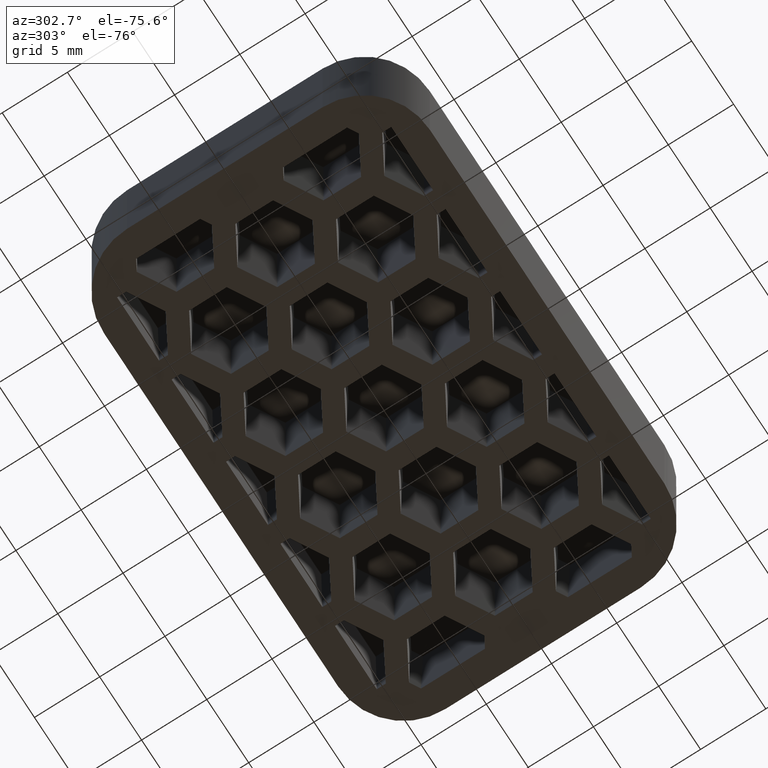
[diagram: clean part render]
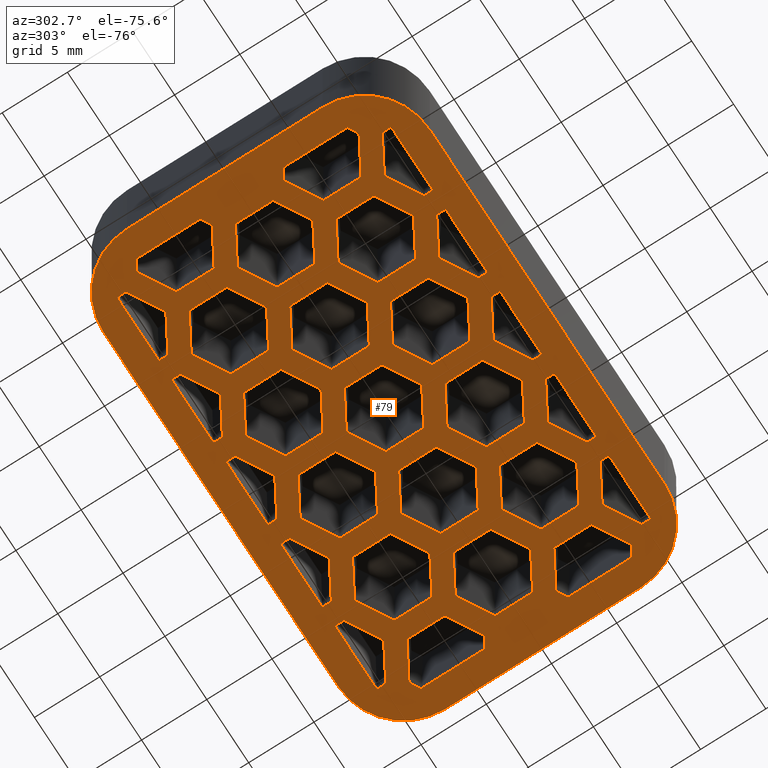
[diagram: same view with one face highlighted and labeled with its STEP entity id]
A machine part, auxiliary view. The second image highlights one B-rep face of the part: STEP entity #79.
In plain terms, the highlighted planar face has unit normal (0, -0, -1).
Its self-contained STEP definition (entity closure, byte-faithful):
#79 = ADVANCED_FACE( '', ( #317, #318, #319, #320, #321, #322, #323, #324, #325, #326, #327, #328, #329, #330, #331, #332, #333, #334, #335, #336, #337, #338, #339, #340, #341, #342, #343, #344 ), #345, .T. );
#317 = FACE_OUTER_BOUND( '', #805, .T. );
#318 = FACE_BOUND( '', #806, .T. );
#319 = FACE_BOUND( '', #807, .T. );
#320 = FACE_BOUND( '', #808, .T. );
#321 = FACE_BOUND( '', #809, .T. );
#322 = FACE_BOUND( '', #810, .T. );
#323 = FACE_BOUND( '', #811, .T. );
#324 = FACE_BOUND( '', #812, .T. );
#325 = FACE_BOUND( '', #813, .T. );
#326 = FACE_BOUND( '', #814, .T. );
#327 = FACE_BOUND( '', #815, .T. );
#328 = FACE_BOUND( '', #816, .T. );
#329 = FACE_BOUND( '', #817, .T. );
#330 = FACE_BOUND( '', #818, .T. );
#331 = FACE_BOUND( '', #819, .T. );
#332 = FACE_BOUND( '', #820, .T. );
#333 = FACE_BOUND( '', #821, .T. );
#334 = FACE_BOUND( '', #822, .T. );
#335 = FACE_BOUND( '', #823, .T. );
#336 = FACE_BOUND( '', #824, .T. );
#337 = FACE_BOUND( '', #825, .T. );
#338 = FACE_BOUND( '', #826, .T. );
#339 = FACE_BOUND( '', #827, .T. );
#340 = FACE_BOUND( '', #828, .T. );
#341 = FACE_BOUND( '', #829, .T. );
#342 = FACE_BOUND( '', #830, .T. );
#343 = FACE_BOUND( '', #831, .T. );
#344 = FACE_BOUND( '', #832, .T. );
#345 = PLANE( '', #833 );
#805 = EDGE_LOOP( '', ( #1340, #1341, #1342, #1343, #1344, #1345, #1346, #1347 ) );
#806 = EDGE_LOOP( '', ( #1348, #1349, #1350, #1351, #1352, #1353 ) );
#807 = EDGE_LOOP( '', ( #1354, #1355, #1356, #1357, #1358, #1359 ) );
#808 = EDGE_LOOP( '', ( #1360, #1361, #1362, #1363, #1364, #1365 ) );
#809 = EDGE_LOOP( '', ( #1366, #1367, #1368, #1369, #1370, #1371 ) );
#810 = EDGE_LOOP( '', ( #1372, #1373, #1374, #1375, #1376, #1377 ) );
#811 = EDGE_LOOP( '', ( #1378, #1379, #1380, #1381, #1382, #1383 ) );
#812 = EDGE_LOOP( '', ( #1384, #1385, #1386, #1387, #1388, #1389 ) );
#813 = EDGE_LOOP( '', ( #1390, #1391, #1392, #1393, #1394, #1395 ) );
#814 = EDGE_LOOP( '', ( #1396, #1397, #1398, #1399, #1400, #1401 ) );
#815 = EDGE_LOOP( '', ( #1402, #1403, #1404, #1405, #1406, #1407 ) );
#816 = EDGE_LOOP( '', ( #1408, #1409, #1410, #1411, #1412, #1413 ) );
#817 = EDGE_LOOP( '', ( #1414, #1415, #1416, #1417, #1418, #1419 ) );
#818 = EDGE_LOOP( '', ( #1420, #1421, #1422, #1423, #1424, #1425 ) );
#819 = EDGE_LOOP( '', ( #1426, #1427, #1428, #1429, #1430 ) );
#820 = EDGE_LOOP( '', ( #1431, #1432, #1433, #1434, #1435 ) );
#821 = EDGE_LOOP( '', ( #1436, #1437, #1438, #1439, #1440 ) );
#822 = EDGE_LOOP( '', ( #1441, #1442, #1443, #1444, #1445 ) );
#823 = EDGE_LOOP( '', ( #1446, #1447, #1448, #1449, #1450 ) );
#824 = EDGE_LOOP( '', ( #1451, #1452, #1453, #1454, #1455, #1456 ) );
#825 = EDGE_LOOP( '', ( #1457, #1458, #1459, #1460, #1461, #1462 ) );
#826 = EDGE_LOOP( '', ( #1463, #1464, #1465, #1466, #1467 ) );
#827 = EDGE_LOOP( '', ( #1468, #1469, #1470, #1471, #1472 ) );
#828 = EDGE_LOOP( '', ( #1473, #1474, #1475, #1476, #1477 ) );
#829 = EDGE_LOOP( '', ( #1478, #1479, #1480, #1481, #1482 ) );
#830 = EDGE_LOOP( '', ( #1483, #1484, #1485, #1486, #1487 ) );
#831 = EDGE_LOOP( '', ( #1488, #1489, #1490, #1491, #1492, #1493 ) );
#832 = EDGE_LOOP( '', ( #1494, #1495, #1496, #1497, #1498, #1499 ) );
#833 = AXIS2_PLACEMENT_3D( '', #1500, #1501, #1502 );
#1340 = ORIENTED_EDGE( '', *, *, #3138, .T. );
#1341 = ORIENTED_EDGE( '', *, *, #3139, .T. );
#1342 = ORIENTED_EDGE( '', *, *, #3140, .T. );
#1343 = ORIENTED_EDGE( '', *, *, #3132, .T. );
#1344 = ORIENTED_EDGE( '', *, *, #3141, .T. );
#1345 = ORIENTED_EDGE( '', *, *, #3142, .T. );
#1346 = ORIENTED_EDGE( '', *, *, #3143, .T. );
#1347 = ORIENTED_EDGE( '', *, *, #3144, .T. );
#1348 = ORIENTED_EDGE( '', *, *, #3145, .T. );
#1349 = ORIENTED_EDGE( '', *, *, #3146, .T. );
#1350 = ORIENTED_EDGE( '', *, *, #3147, .T. );
#1351 = ORIENTED_EDGE( '', *, *, #3148, .T. );
#1352 = ORIENTED_EDGE( '', *, *, #3149, .T. );
#1353 = ORIENTED_EDGE( '', *, *, #3150, .T. );
#1354 = ORIENTED_EDGE( '', *, *, #3151, .T. );
#1355 = ORIENTED_EDGE( '', *, *, #3152, .T. );
#1356 = ORIENTED_EDGE( '', *, *, #3153, .T. );
#1357 = ORIENTED_EDGE( '', *, *, #3154, .T. );
#1358 = ORIENTED_EDGE( '', *, *, #3155, .T. );
#1359 = ORIENTED_EDGE( '', *, *, #3156, .T. );
#1360 = ORIENTED_EDGE( '', *, *, #3157, .F. );
#1361 = ORIENTED_EDGE( '', *, *, #3158, .F. );
#1362 = ORIENTED_EDGE( '', *, *, #3159, .F. );
#1363 = ORIENTED_EDGE( '', *, *, #3160, .F. );
#1364 = ORIENTED_EDGE( '', *, *, #3161, .F. );
#1365 = ORIENTED_EDGE( '', *, *, #3162, .F. );
#1366 = ORIENTED_EDGE( '', *, *, #3163, .F. );
#1367 = ORIENTED_EDGE( '', *, *, #3164, .F. );
#1368 = ORIENTED_EDGE( '', *, *, #3165, .F. );
#1369 = ORIENTED_EDGE( '', *, *, #3166, .F. );
#1370 = ORIENTED_EDGE( '', *, *, #3167, .F. );
#1371 = ORIENTED_EDGE( '', *, *, #3168, .F. );
#1372 = ORIENTED_EDGE( '', *, *, #3169, .F. );
#1373 = ORIENTED_EDGE( '', *, *, #3170, .F. );
#1374 = ORIENTED_EDGE( '', *, *, #3171, .F. );
#1375 = ORIENTED_EDGE( '', *, *, #3172, .F. );
#1376 = ORIENTED_EDGE( '', *, *, #3173, .F. );
#1377 = ORIENTED_EDGE( '', *, *, #3174, .F. );
#1378 = ORIENTED_EDGE( '', *, *, #3175, .F. );
#1379 = ORIENTED_EDGE( '', *, *, #3176, .F. );
#1380 = ORIENTED_EDGE( '', *, *, #3177, .F. );
#1381 = ORIENTED_EDGE( '', *, *, #3178, .F. );
#1382 = ORIENTED_EDGE( '', *, *, #3179, .F. );
#1383 = ORIENTED_EDGE( '', *, *, #3180, .F. );
#1384 = ORIENTED_EDGE( '', *, *, #3181, .F. );
#1385 = ORIENTED_EDGE( '', *, *, #3182, .F. );
#1386 = ORIENTED_EDGE( '', *, *, #3183, .F. );
#1387 = ORIENTED_EDGE( '', *, *, #3184, .F. );
#1388 = ORIENTED_EDGE( '', *, *, #3185, .F. );
#1389 = ORIENTED_EDGE( '', *, *, #3186, .F. );
#1390 = ORIENTED_EDGE( '', *, *, #3187, .F. );
#1391 = ORIENTED_EDGE( '', *, *, #3188, .F. );
#1392 = ORIENTED_EDGE( '', *, *, #3189, .F. );
#1393 = ORIENTED_EDGE( '', *, *, #3190, .F. );
#1394 = ORIENTED_EDGE( '', *, *, #3191, .F. );
#1395 = ORIENTED_EDGE( '', *, *, #3192, .F. );
#1396 = ORIENTED_EDGE( '', *, *, #3193, .F. );
#1397 = ORIENTED_EDGE( '', *, *, #3194, .F. );
#1398 = ORIENTED_EDGE( '', *, *, #3195, .F. );
#1399 = ORIENTED_EDGE( '', *, *, #3196, .F. );
#1400 = ORIENTED_EDGE( '', *, *, #3197, .F. );
#1401 = ORIENTED_EDGE( '', *, *, #3198, .F. );
#1402 = ORIENTED_EDGE( '', *, *, #3199, .F. );
#1403 = ORIENTED_EDGE( '', *, *, #3200, .F. );
#1404 = ORIENTED_EDGE( '', *, *, #3201, .F. );
#1405 = ORIENTED_EDGE( '', *, *, #3202, .F. );
#1406 = ORIENTED_EDGE( '', *, *, #3203, .F. );
#1407 = ORIENTED_EDGE( '', *, *, #3204, .F. );
#1408 = ORIENTED_EDGE( '', *, *, #3205, .F. );
#1409 = ORIENTED_EDGE( '', *, *, #3206, .F. );
#1410 = ORIENTED_EDGE( '', *, *, #3207, .F. );
#1411 = ORIENTED_EDGE( '', *, *, #3208, .F. );
#1412 = ORIENTED_EDGE( '', *, *, #3209, .F. );
#1413 = ORIENTED_EDGE( '', *, *, #3210, .F. );
#1414 = ORIENTED_EDGE( '', *, *, #3211, .T. );
#1415 = ORIENTED_EDGE( '', *, *, #3212, .T. );
#1416 = ORIENTED_EDGE( '', *, *, #3213, .T. );
#1417 = ORIENTED_EDGE( '', *, *, #3214, .T. );
#1418 = ORIENTED_EDGE( '', *, *, #3215, .T. );
#1419 = ORIENTED_EDGE( '', *, *, #3216, .T. );
#1420 = ORIENTED_EDGE( '', *, *, #3217, .T. );
#1421 = ORIENTED_EDGE( '', *, *, #3218, .T. );
#1422 = ORIENTED_EDGE( '', *, *, #3219, .T. );
#1423 = ORIENTED_EDGE( '', *, *, #3220, .T. );
#1424 = ORIENTED_EDGE( '', *, *, #3221, .T. );
#1425 = ORIENTED_EDGE( '', *, *, #3222, .T. );
#1426 = ORIENTED_EDGE( '', *, *, #3223, .T. );
#1427 = ORIENTED_EDGE( '', *, *, #3224, .F. );
#1428 = ORIENTED_EDGE( '', *, *, #3225, .F. );
#1429 = ORIENTED_EDGE( '', *, *, #3226, .F. );
#1430 = ORIENTED_EDGE( '', *, *, #3227, .F. );
#1431 = ORIENTED_EDGE( '', *, *, #3228, .T. );
#1432 = ORIENTED_EDGE( '', *, *, #3229, .F. );
#1433 = ORIENTED_EDGE( '', *, *, #3230, .F. );
#1434 = ORIENTED_EDGE( '', *, *, #3231, .F. );
#1435 = ORIENTED_EDGE( '', *, *, #3232, .F. );
#1436 = ORIENTED_EDGE( '', *, *, #3233, .T. );
#1437 = ORIENTED_EDGE( '', *, *, #3234, .F. );
#1438 = ORIENTED_EDGE( '', *, *, #3235, .F. );
#1439 = ORIENTED_EDGE( '', *, *, #3236, .F. );
#1440 = ORIENTED_EDGE( '', *, *, #3237, .F. );
#1441 = ORIENTED_EDGE( '', *, *, #3238, .T. );
#1442 = ORIENTED_EDGE( '', *, *, #3239, .F. );
#1443 = ORIENTED_EDGE( '', *, *, #3240, .F. );
#1444 = ORIENTED_EDGE( '', *, *, #3241, .F. );
#1445 = ORIENTED_EDGE( '', *, *, #3242, .F. );
#1446 = ORIENTED_EDGE( '', *, *, #3243, .T. );
#1447 = ORIENTED_EDGE( '', *, *, #3244, .F. );
#1448 = ORIENTED_EDGE( '', *, *, #3245, .F. );
#1449 = ORIENTED_EDGE( '', *, *, #3246, .F. );
#1450 = ORIENTED_EDGE( '', *, *, #3247, .F. );
#1451 = ORIENTED_EDGE( '', *, *, #3248, .T. );
#1452 = ORIENTED_EDGE( '', *, *, #3249, .T. );
#1453 = ORIENTED_EDGE( '', *, *, #3250, .T. );
#1454 = ORIENTED_EDGE( '', *, *, #3251, .T. );
#1455 = ORIENTED_EDGE( '', *, *, #3252, .T. );
#1456 = ORIENTED_EDGE( '', *, *, #3253, .T. );
#1457 = ORIENTED_EDGE( '', *, *, #3254, .T. );
#1458 = ORIENTED_EDGE( '', *, *, #3255, .F. );
#1459 = ORIENTED_EDGE( '', *, *, #3256, .F. );
#1460 = ORIENTED_EDGE( '', *, *, #3257, .F. );
#1461 = ORIENTED_EDGE( '', *, *, #3258, .F. );
#1462 = ORIENTED_EDGE( '', *, *, #3259, .F. );
#1463 = ORIENTED_EDGE( '', *, *, #3260, .F. );
#1464 = ORIENTED_EDGE( '', *, *, #3261, .T. );
#1465 = ORIENTED_EDGE( '', *, *, #3262, .F. );
#1466 = ORIENTED_EDGE( '', *, *, #3263, .F. );
#1467 = ORIENTED_EDGE( '', *, *, #3264, .F. );
#1468 = ORIENTED_EDGE( '', *, *, #3265, .T. );
#1469 = ORIENTED_EDGE( '', *, *, #3266, .F. );
#1470 = ORIENTED_EDGE( '', *, *, #3267, .F. );
#1471 = ORIENTED_EDGE( '', *, *, #3268, .F. );
#1472 = ORIENTED_EDGE( '', *, *, #3269, .F. );
#1473 = ORIENTED_EDGE( '', *, *, #3270, .T. );
#1474 = ORIENTED_EDGE( '', *, *, #3271, .F. );
#1475 = ORIENTED_EDGE( '', *, *, #3272, .F. );
#1476 = ORIENTED_EDGE( '', *, *, #3273, .F. );
#1477 = ORIENTED_EDGE( '', *, *, #3274, .F. );
#1478 = ORIENTED_EDGE( '', *, *, #3275, .T. );
#1479 = ORIENTED_EDGE( '', *, *, #3276, .F. );
#1480 = ORIENTED_EDGE( '', *, *, #3277, .F. );
#1481 = ORIENTED_EDGE( '', *, *, #3278, .F. );
#1482 = ORIENTED_EDGE( '', *, *, #3279, .F. );
#1483 = ORIENTED_EDGE( '', *, *, #3280, .T. );
#1484 = ORIENTED_EDGE( '', *, *, #3281, .F. );
#1485 = ORIENTED_EDGE( '', *, *, #3282, .F. );
#1486 = ORIENTED_EDGE( '', *, *, #3283, .F. );
#1487 = ORIENTED_EDGE( '', *, *, #3284, .F. );
#1488 = ORIENTED_EDGE( '', *, *, #3285, .F. );
#1489 = ORIENTED_EDGE( '', *, *, #3286, .T. );
#1490 = ORIENTED_EDGE( '', *, *, #3287, .F. );
#1491 = ORIENTED_EDGE( '', *, *, #3288, .F. );
#1492 = ORIENTED_EDGE( '', *, *, #3289, .F. );
#1493 = ORIENTED_EDGE( '', *, *, #3290, .F. );
#1494 = ORIENTED_EDGE( '', *, *, #3291, .T. );
#1495 = ORIENTED_EDGE( '', *, *, #3292, .T. );
#1496 = ORIENTED_EDGE( '', *, *, #3293, .T. );
#1497 = ORIENTED_EDGE( '', *, *, #3294, .T. );
#1498 = ORIENTED_EDGE( '', *, *, #3295, .T. );
#1499 = ORIENTED_EDGE( '', *, *, #3296, .T. );
#1500 = CARTESIAN_POINT( '', ( 30.5000000000000, -4.24870678161208E-031, -6.93889390390723E-015 ) );
#1501 = DIRECTION( '', ( 0.000000000000000, -6.12303176911189E-017, -1.00000000000000 ) );
#1502 = DIRECTION( '', ( 1.00000000000000, 6.12303176911189E-017, -3.74915180455534E-033 ) );
#3132 = EDGE_CURVE( '', #3736, #3738, #3740, .T. );
#3138 = EDGE_CURVE( '', #3749, #3750, #3751, .T. );
#3139 = EDGE_CURVE( '', #3750, #3752, #3753, .T. );
#3140 = EDGE_CURVE( '', #3752, #3736, #3754, .T. );
#3141 = EDGE_CURVE( '', #3738, #3755, #3756, .T. );
#3142 = EDGE_CURVE( '', #3755, #3757, #3758, .T. );
#3143 = EDGE_CURVE( '', #3757, #3759, #3760, .T. );
#3144 = EDGE_CURVE( '', #3759, #3749, #3761, .T. );
#3145 = EDGE_CURVE( '', #3762, #3763, #3764, .F. );
#3146 = EDGE_CURVE( '', #3763, #3765, #3766, .F. );
#3147 = EDGE_CURVE( '', #3765, #3767, #3768, .F. );
#3148 = EDGE_CURVE( '', #3767, #3769, #3770, .F. );
#3149 = EDGE_CURVE( '', #3769, #3771, #3772, .F. );
#3150 = EDGE_CURVE( '', #3771, #3762, #3773, .F. );
#3151 = EDGE_CURVE( '', #3774, #3775, #3776, .F. );
#3152 = EDGE_CURVE( '', #3775, #3777, #3778, .F. );
#3153 = EDGE_CURVE( '', #3777, #3779, #3780, .F. );
#3154 = EDGE_CURVE( '', #3779, #3781, #3782, .F. );
#3155 = EDGE_CURVE( '', #3781, #3783, #3784, .F. );
#3156 = EDGE_CURVE( '', #3783, #3774, #3785, .F. );
#3157 = EDGE_CURVE( '', #3786, #3787, #3788, .T. );
#3158 = EDGE_CURVE( '', #3789, #3786, #3790, .T. );
#3159 = EDGE_CURVE( '', #3791, #3789, #3792, .T. );
#3160 = EDGE_CURVE( '', #3793, #3791, #3794, .T. );
#3161 = EDGE_CURVE( '', #3795, #3793, #3796, .T. );
#3162 = EDGE_CURVE( '', #3787, #3795, #3797, .T. );
#3163 = EDGE_CURVE( '', #3798, #3799, #3800, .T. );
#3164 = EDGE_CURVE( '', #3801, #3798, #3802, .T. );
#3165 = EDGE_CURVE( '', #3803, #3801, #3804, .T. );
#3166 = EDGE_CURVE( '', #3805, #3803, #3806, .T. );
#3167 = EDGE_CURVE( '', #3807, #3805, #3808, .T. );
#3168 = EDGE_CURVE( '', #3799, #3807, #3809, .T. );
#3169 = EDGE_CURVE( '', #3810, #3811, #3812, .T. );
#3170 = EDGE_CURVE( '', #3813, #3810, #3814, .T. );
#3171 = EDGE_CURVE( '', #3815, #3813, #3816, .T. );
#3172 = EDGE_CURVE( '', #3817, #3815, #3818, .T. );
#3173 = EDGE_CURVE( '', #3819, #3817, #3820, .T. );
#3174 = EDGE_CURVE( '', #3811, #3819, #3821, .T. );
#3175 = EDGE_CURVE( '', #3822, #3823, #3824, .T. );
#3176 = EDGE_CURVE( '', #3825, #3822, #3826, .T. );
#3177 = EDGE_CURVE( '', #3827, #3825, #3828, .T. );
#3178 = EDGE_CURVE( '', #3829, #3827, #3830, .T. );
#3179 = EDGE_CURVE( '', #3831, #3829, #3832, .T. );
#3180 = EDGE_CURVE( '', #3823, #3831, #3833, .T. );
#3181 = EDGE_CURVE( '', #3834, #3835, #3836, .T. );
#3182 = EDGE_CURVE( '', #3837, #3834, #3838, .T. );
#3183 = EDGE_CURVE( '', #3839, #3837, #3840, .T. );
#3184 = EDGE_CURVE( '', #3841, #3839, #3842, .T. );
#3185 = EDGE_CURVE( '', #3843, #3841, #3844, .T. );
#3186 = EDGE_CURVE( '', #3835, #3843, #3845, .T. );
#3187 = EDGE_CURVE( '', #3846, #3847, #3848, .T. );
#3188 = EDGE_CURVE( '', #3849, #3846, #3850, .T. );
#3189 = EDGE_CURVE( '', #3851, #3849, #3852, .T. );
#3190 = EDGE_CURVE( '', #3853, #3851, #3854, .T. );
#3191 = EDGE_CURVE( '', #3855, #3853, #3856, .T. );
#3192 = EDGE_CURVE( '', #3847, #3855, #3857, .T. );
#3193 = EDGE_CURVE( '', #3858, #3859, #3860, .T. );
#3194 = EDGE_CURVE( '', #3861, #3858, #3862, .T. );
#3195 = EDGE_CURVE( '', #3863, #3861, #3864, .T. );
#3196 = EDGE_CURVE( '', #3865, #3863, #3866, .T. );
#3197 = EDGE_CURVE( '', #3867, #3865, #3868, .T. );
#3198 = EDGE_CURVE( '', #3859, #3867, #3869, .T. );
#3199 = EDGE_CURVE( '', #3870, #3871, #3872, .T. );
#3200 = EDGE_CURVE( '', #3873, #3870, #3874, .T. );
#3201 = EDGE_CURVE( '', #3875, #3873, #3876, .T. );
#3202 = EDGE_CURVE( '', #3877, #3875, #3878, .T. );
#3203 = EDGE_CURVE( '', #3879, #3877, #3880, .T. );
#3204 = EDGE_CURVE( '', #3871, #3879, #3881, .T. );
#3205 = EDGE_CURVE( '', #3882, #3883, #3884, .T. );
#3206 = EDGE_CURVE( '', #3885, #3882, #3886, .T. );
#3207 = EDGE_CURVE( '', #3887, #3885, #3888, .T. );
#3208 = EDGE_CURVE( '', #3889, #3887, #3890, .T. );
#3209 = EDGE_CURVE( '', #3891, #3889, #3892, .T. );
#3210 = EDGE_CURVE( '', #3883, #3891, #3893, .T. );
#3211 = EDGE_CURVE( '', #3894, #3895, #3896, .F. );
#3212 = EDGE_CURVE( '', #3895, #3897, #3898, .F. );
#3213 = EDGE_CURVE( '', #3897, #3899, #3900, .F. );
#3214 = EDGE_CURVE( '', #3899, #3901, #3902, .F. );
#3215 = EDGE_CURVE( '', #3901, #3903, #3904, .F. );
#3216 = EDGE_CURVE( '', #3903, #3894, #3905, .F. );
#3217 = EDGE_CURVE( '', #3906, #3907, #3908, .F. );
#3218 = EDGE_CURVE( '', #3907, #3909, #3910, .F. );
#3219 = EDGE_CURVE( '', #3909, #3911, #3912, .F. );
#3220 = EDGE_CURVE( '', #3911, #3913, #3914, .F. );
#3221 = EDGE_CURVE( '', #3913, #3915, #3916, .F. );
#3222 = EDGE_CURVE( '', #3915, #3906, #3917, .F. );
#3223 = EDGE_CURVE( '', #3918, #3919, #3920, .T. );
#3224 = EDGE_CURVE( '', #3921, #3919, #3922, .T. );
#3225 = EDGE_CURVE( '', #3923, #3921, #3924, .T. );
#3226 = EDGE_CURVE( '', #3925, #3923, #3926, .T. );
#3227 = EDGE_CURVE( '', #3918, #3925, #3927, .T. );
#3228 = EDGE_CURVE( '', #3928, #3929, #3930, .T. );
#3229 = EDGE_CURVE( '', #3931, #3929, #3932, .T. );
#3230 = EDGE_CURVE( '', #3933, #3931, #3934, .T. );
#3231 = EDGE_CURVE( '', #3935, #3933, #3936, .T. );
#3232 = EDGE_CURVE( '', #3928, #3935, #3937, .T. );
#3233 = EDGE_CURVE( '', #3938, #3939, #3940, .T. );
#3234 = EDGE_CURVE( '', #3941, #3939, #3942, .T. );
#3235 = EDGE_CURVE( '', #3943, #3941, #3944, .T. );
#3236 = EDGE_CURVE( '', #3945, #3943, #3946, .T. );
#3237 = EDGE_CURVE( '', #3938, #3945, #3947, .T. );
#3238 = EDGE_CURVE( '', #3948, #3949, #3950, .T. );
#3239 = EDGE_CURVE( '', #3951, #3949, #3952, .T. );
#3240 = EDGE_CURVE( '', #3953, #3951, #3954, .T. );
#3241 = EDGE_CURVE( '', #3955, #3953, #3956, .T. );
#3242 = EDGE_CURVE( '', #3948, #3955, #3957, .T. );
#3243 = EDGE_CURVE( '', #3958, #3959, #3960, .T. );
#3244 = EDGE_CURVE( '', #3961, #3959, #3962, .T. );
#3245 = EDGE_CURVE( '', #3963, #3961, #3964, .T. );
#3246 = EDGE_CURVE( '', #3965, #3963, #3966, .T. );
#3247 = EDGE_CURVE( '', #3958, #3965, #3967, .T. );
#3248 = EDGE_CURVE( '', #3968, #3969, #3970, .T. );
#3249 = EDGE_CURVE( '', #3969, #3971, #3972, .F. );
#3250 = EDGE_CURVE( '', #3971, #3973, #3974, .F. );
#3251 = EDGE_CURVE( '', #3973, #3975, #3976, .F. );
#3252 = EDGE_CURVE( '', #3975, #3977, #3978, .F. );
#3253 = EDGE_CURVE( '', #3977, #3968, #3979, .F. );
#3254 = EDGE_CURVE( '', #3980, #3981, #3982, .T. );
#3255 = EDGE_CURVE( '', #3983, #3981, #3984, .T. );
#3256 = EDGE_CURVE( '', #3985, #3983, #3986, .T. );
#3257 = EDGE_CURVE( '', #3987, #3985, #3988, .T. );
#3258 = EDGE_CURVE( '', #3989, #3987, #3990, .T. );
#3259 = EDGE_CURVE( '', #3980, #3989, #3991, .T. );
#3260 = EDGE_CURVE( '', #3992, #3993, #3994, .T. );
#3261 = EDGE_CURVE( '', #3992, #3995, #3996, .T. );
#3262 = EDGE_CURVE( '', #3997, #3995, #3998, .T. );
#3263 = EDGE_CURVE( '', #3999, #3997, #4000, .T. );
#3264 = EDGE_CURVE( '', #3993, #3999, #4001, .T. );
#3265 = EDGE_CURVE( '', #4002, #4003, #4004, .T. );
#3266 = EDGE_CURVE( '', #4005, #4003, #4006, .T. );
#3267 = EDGE_CURVE( '', #4007, #4005, #4008, .T. );
#3268 = EDGE_CURVE( '', #4009, #4007, #4010, .T. );
#3269 = EDGE_CURVE( '', #4002, #4009, #4011, .T. );
#3270 = EDGE_CURVE( '', #4012, #4013, #4014, .T. );
#3271 = EDGE_CURVE( '', #4015, #4013, #4016, .T. );
#3272 = EDGE_CURVE( '', #4017, #4015, #4018, .T. );
#3273 = EDGE_CURVE( '', #4019, #4017, #4020, .T. );
#3274 = EDGE_CURVE( '', #4012, #4019, #4021, .T. );
#3275 = EDGE_CURVE( '', #4022, #4023, #4024, .T. );
#3276 = EDGE_CURVE( '', #4025, #4023, #4026, .T. );
#3277 = EDGE_CURVE( '', #4027, #4025, #4028, .T. );
#3278 = EDGE_CURVE( '', #4029, #4027, #4030, .T. );
#3279 = EDGE_CURVE( '', #4022, #4029, #4031, .T. );
#3280 = EDGE_CURVE( '', #4032, #4033, #4034, .T. );
#3281 = EDGE_CURVE( '', #4035, #4033, #4036, .T. );
#3282 = EDGE_CURVE( '', #4037, #4035, #4038, .T. );
#3283 = EDGE_CURVE( '', #4039, #4037, #4040, .T. );
#3284 = EDGE_CURVE( '', #4032, #4039, #4041, .T. );
#3285 = EDGE_CURVE( '', #4042, #4043, #4044, .T. );
#3286 = EDGE_CURVE( '', #4042, #4045, #4046, .T. );
#3287 = EDGE_CURVE( '', #4047, #4045, #4048, .T. );
#3288 = EDGE_CURVE( '', #4049, #4047, #4050, .T. );
#3289 = EDGE_CURVE( '', #4051, #4049, #4052, .T. );
#3290 = EDGE_CURVE( '', #4043, #4051, #4053, .T. );
#3291 = EDGE_CURVE( '', #4054, #4055, #4056, .T. );
#3292 = EDGE_CURVE( '', #4055, #4057, #4058, .F. );
#3293 = EDGE_CURVE( '', #4057, #4059, #4060, .F. );
#3294 = EDGE_CURVE( '', #4059, #4061, #4062, .F. );
#3295 = EDGE_CURVE( '', #4061, #4063, #4064, .F. );
#3296 = EDGE_CURVE( '', #4063, #4054, #4065, .F. );
#3736 = VERTEX_POINT( '', #4714 );
#3738 = VERTEX_POINT( '', #4717 );
#3740 = LINE( '', #4720, #4721 );
#3749 = VERTEX_POINT( '', #4735 );
#3750 = VERTEX_POINT( '', #4736 );
#3751 = CIRCLE( '', #4737, 5.00000000000000 );
#3752 = VERTEX_POINT( '', #4738 );
#3753 = LINE( '', #4739, #4740 );
#3754 = CIRCLE( '', #4741, 4.99999999999998 );
#3755 = VERTEX_POINT( '', #4742 );
#3756 = CIRCLE( '', #4743, 5.00000000000000 );
#3757 = VERTEX_POINT( '', #4744 );
#3758 = LINE( '', #4745, #4746 );
#3759 = VERTEX_POINT( '', #4747 );
#3760 = CIRCLE( '', #4748, 5.00000000000000 );
#3761 = LINE( '', #4749, #4750 );
#3762 = VERTEX_POINT( '', #4751 );
#3763 = VERTEX_POINT( '', #4752 );
#3764 = LINE( '', #4753, #4754 );
#3765 = VERTEX_POINT( '', #4755 );
#3766 = LINE( '', #4756, #4757 );
#3767 = VERTEX_POINT( '', #4758 );
#3768 = LINE( '', #4759, #4760 );
#3769 = VERTEX_POINT( '', #4761 );
#3770 = LINE( '', #4762, #4763 );
#3771 = VERTEX_POINT( '', #4764 );
#3772 = LINE( '', #4765, #4766 );
#3773 = LINE( '', #4767, #4768 );
#3774 = VERTEX_POINT( '', #4769 );
#3775 = VERTEX_POINT( '', #4770 );
#3776 = LINE( '', #4771, #4772 );
#3777 = VERTEX_POINT( '', #4773 );
#3778 = LINE( '', #4774, #4775 );
#3779 = VERTEX_POINT( '', #4776 );
#3780 = LINE( '', #4777, #4778 );
#3781 = VERTEX_POINT( '', #4779 );
#3782 = LINE( '', #4780, #4781 );
#3783 = VERTEX_POINT( '', #4782 );
#3784 = LINE( '', #4783, #4784 );
#3785 = LINE( '', #4785, #4786 );
#3786 = VERTEX_POINT( '', #4787 );
#3787 = VERTEX_POINT( '', #4788 );
#3788 = LINE( '', #4789, #4790 );
#3789 = VERTEX_POINT( '', #4791 );
#3790 = LINE( '', #4792, #4793 );
#3791 = VERTEX_POINT( '', #4794 );
#3792 = LINE( '', #4795, #4796 );
#3793 = VERTEX_POINT( '', #4797 );
#3794 = LINE( '', #4798, #4799 );
#3795 = VERTEX_POINT( '', #4800 );
#3796 = LINE( '', #4801, #4802 );
#3797 = LINE( '', #4803, #4804 );
#3798 = VERTEX_POINT( '', #4805 );
#3799 = VERTEX_POINT( '', #4806 );
#3800 = LINE( '', #4807, #4808 );
#3801 = VERTEX_POINT( '', #4809 );
#3802 = LINE( '', #4810, #4811 );
#3803 = VERTEX_POINT( '', #4812 );
#3804 = LINE( '', #4813, #4814 );
#3805 = VERTEX_POINT( '', #4815 );
#3806 = LINE( '', #4816, #4817 );
#3807 = VERTEX_POINT( '', #4818 );
#3808 = LINE( '', #4819, #4820 );
#3809 = LINE( '', #4821, #4822 );
#3810 = VERTEX_POINT( '', #4823 );
#3811 = VERTEX_POINT( '', #4824 );
#3812 = LINE( '', #4825, #4826 );
#3813 = VERTEX_POINT( '', #4827 );
#3814 = LINE( '', #4828, #4829 );
#3815 = VERTEX_POINT( '', #4830 );
#3816 = LINE( '', #4831, #4832 );
#3817 = VERTEX_POINT( '', #4833 );
#3818 = LINE( '', #4834, #4835 );
#3819 = VERTEX_POINT( '', #4836 );
#3820 = LINE( '', #4837, #4838 );
#3821 = LINE( '', #4839, #4840 );
#3822 = VERTEX_POINT( '', #4841 );
#3823 = VERTEX_POINT( '', #4842 );
#3824 = LINE( '', #4843, #4844 );
#3825 = VERTEX_POINT( '', #4845 );
#3826 = LINE( '', #4846, #4847 );
#3827 = VERTEX_POINT( '', #4848 );
#3828 = LINE( '', #4849, #4850 );
#3829 = VERTEX_POINT( '', #4851 );
#3830 = LINE( '', #4852, #4853 );
#3831 = VERTEX_POINT( '', #4854 );
#3832 = LINE( '', #4855, #4856 );
#3833 = LINE( '', #4857, #4858 );
#3834 = VERTEX_POINT( '', #4859 );
#3835 = VERTEX_POINT( '', #4860 );
#3836 = LINE( '', #4861, #4862 );
#3837 = VERTEX_POINT( '', #4863 );
#3838 = LINE( '', #4864, #4865 );
#3839 = VERTEX_POINT( '', #4866 );
#3840 = LINE( '', #4867, #4868 );
#3841 = VERTEX_POINT( '', #4869 );
#3842 = LINE( '', #4870, #4871 );
#3843 = VERTEX_POINT( '', #4872 );
#3844 = LINE( '', #4873, #4874 );
#3845 = LINE( '', #4875, #4876 );
#3846 = VERTEX_POINT( '', #4877 );
#3847 = VERTEX_POINT( '', #4878 );
#3848 = LINE( '', #4879, #4880 );
#3849 = VERTEX_POINT( '', #4881 );
#3850 = LINE( '', #4882, #4883 );
#3851 = VERTEX_POINT( '', #4884 );
#3852 = LINE( '', #4885, #4886 );
#3853 = VERTEX_POINT( '', #4887 );
#3854 = LINE( '', #4888, #4889 );
#3855 = VERTEX_POINT( '', #4890 );
#3856 = LINE( '', #4891, #4892 );
#3857 = LINE( '', #4893, #4894 );
#3858 = VERTEX_POINT( '', #4895 );
#3859 = VERTEX_POINT( '', #4896 );
#3860 = LINE( '', #4897, #4898 );
#3861 = VERTEX_POINT( '', #4899 );
#3862 = LINE( '', #4900, #4901 );
#3863 = VERTEX_POINT( '', #4902 );
#3864 = LINE( '', #4903, #4904 );
#3865 = VERTEX_POINT( '', #4905 );
#3866 = LINE( '', #4906, #4907 );
#3867 = VERTEX_POINT( '', #4908 );
#3868 = LINE( '', #4909, #4910 );
#3869 = LINE( '', #4911, #4912 );
#3870 = VERTEX_POINT( '', #4913 );
#3871 = VERTEX_POINT( '', #4914 );
#3872 = LINE( '', #4915, #4916 );
#3873 = VERTEX_POINT( '', #4917 );
#3874 = LINE( '', #4918, #4919 );
#3875 = VERTEX_POINT( '', #4920 );
#3876 = LINE( '', #4921, #4922 );
#3877 = VERTEX_POINT( '', #4923 );
#3878 = LINE( '', #4924, #4925 );
#3879 = VERTEX_POINT( '', #4926 );
#3880 = LINE( '', #4927, #4928 );
#3881 = LINE( '', #4929, #4930 );
#3882 = VERTEX_POINT( '', #4931 );
#3883 = VERTEX_POINT( '', #4932 );
#3884 = LINE( '', #4933, #4934 );
#3885 = VERTEX_POINT( '', #4935 );
#3886 = LINE( '', #4936, #4937 );
#3887 = VERTEX_POINT( '', #4938 );
#3888 = LINE( '', #4939, #4940 );
#3889 = VERTEX_POINT( '', #4941 );
#3890 = LINE( '', #4942, #4943 );
#3891 = VERTEX_POINT( '', #4944 );
#3892 = LINE( '', #4945, #4946 );
#3893 = LINE( '', #4947, #4948 );
#3894 = VERTEX_POINT( '', #4949 );
#3895 = VERTEX_POINT( '', #4950 );
#3896 = LINE( '', #4951, #4952 );
#3897 = VERTEX_POINT( '', #4953 );
#3898 = LINE( '', #4954, #4955 );
#3899 = VERTEX_POINT( '', #4956 );
#3900 = LINE( '', #4957, #4958 );
#3901 = VERTEX_POINT( '', #4959 );
#3902 = LINE( '', #4960, #4961 );
#3903 = VERTEX_POINT( '', #4962 );
#3904 = LINE( '', #4963, #4964 );
#3905 = LINE( '', #4965, #4966 );
#3906 = VERTEX_POINT( '', #4967 );
#3907 = VERTEX_POINT( '', #4968 );
#3908 = LINE( '', #4969, #4970 );
#3909 = VERTEX_POINT( '', #4971 );
#3910 = LINE( '', #4972, #4973 );
#3911 = VERTEX_POINT( '', #4974 );
#3912 = LINE( '', #4975, #4976 );
#3913 = VERTEX_POINT( '', #4977 );
#3914 = LINE( '', #4978, #4979 );
#3915 = VERTEX_POINT( '', #4980 );
#3916 = LINE( '', #4981, #4982 );
#3917 = LINE( '', #4983, #4984 );
#3918 = VERTEX_POINT( '', #4985 );
#3919 = VERTEX_POINT( '', #4986 );
#3920 = LINE( '', #4987, #4988 );
#3921 = VERTEX_POINT( '', #4989 );
#3922 = LINE( '', #4990, #4991 );
#3923 = VERTEX_POINT( '', #4992 );
#3924 = LINE( '', #4993, #4994 );
#3925 = VERTEX_POINT( '', #4995 );
#3926 = LINE( '', #4996, #4997 );
#3927 = LINE( '', #4998, #4999 );
#3928 = VERTEX_POINT( '', #5000 );
#3929 = VERTEX_POINT( '', #5001 );
#3930 = LINE( '', #5002, #5003 );
#3931 = VERTEX_POINT( '', #5004 );
#3932 = LINE( '', #5005, #5006 );
#3933 = VERTEX_POINT( '', #5007 );
#3934 = LINE( '', #5008, #5009 );
#3935 = VERTEX_POINT( '', #5010 );
#3936 = LINE( '', #5011, #5012 );
#3937 = LINE( '', #5013, #5014 );
#3938 = VERTEX_POINT( '', #5015 );
#3939 = VERTEX_POINT( '', #5016 );
#3940 = LINE( '', #5017, #5018 );
#3941 = VERTEX_POINT( '', #5019 );
#3942 = LINE( '', #5020, #5021 );
#3943 = VERTEX_POINT( '', #5022 );
#3944 = LINE( '', #5023, #5024 );
#3945 = VERTEX_POINT( '', #5025 );
#3946 = LINE( '', #5026, #5027 );
#3947 = LINE( '', #5028, #5029 );
#3948 = VERTEX_POINT( '', #5030 );
#3949 = VERTEX_POINT( '', #5031 );
#3950 = LINE( '', #5032, #5033 );
#3951 = VERTEX_POINT( '', #5034 );
#3952 = LINE( '', #5035, #5036 );
#3953 = VERTEX_POINT( '', #5037 );
#3954 = LINE( '', #5038, #5039 );
#3955 = VERTEX_POINT( '', #5040 );
#3956 = LINE( '', #5041, #5042 );
#3957 = LINE( '', #5043, #5044 );
#3958 = VERTEX_POINT( '', #5045 );
#3959 = VERTEX_POINT( '', #5046 );
#3960 = LINE( '', #5047, #5048 );
#3961 = VERTEX_POINT( '', #5049 );
#3962 = LINE( '', #5050, #5051 );
#3963 = VERTEX_POINT( '', #5052 );
#3964 = LINE( '', #5053, #5054 );
#3965 = VERTEX_POINT( '', #5055 );
#3966 = LINE( '', #5056, #5057 );
#3967 = LINE( '', #5058, #5059 );
#3968 = VERTEX_POINT( '', #5060 );
#3969 = VERTEX_POINT( '', #5061 );
#3970 = LINE( '', #5062, #5063 );
#3971 = VERTEX_POINT( '', #5064 );
#3972 = LINE( '', #5065, #5066 );
#3973 = VERTEX_POINT( '', #5067 );
#3974 = LINE( '', #5068, #5069 );
#3975 = VERTEX_POINT( '', #5070 );
#3976 = LINE( '', #5071, #5072 );
#3977 = VERTEX_POINT( '', #5073 );
#3978 = LINE( '', #5074, #5075 );
#3979 = LINE( '', #5076, #5077 );
#3980 = VERTEX_POINT( '', #5078 );
#3981 = VERTEX_POINT( '', #5079 );
#3982 = LINE( '', #5080, #5081 );
#3983 = VERTEX_POINT( '', #5082 );
#3984 = LINE( '', #5083, #5084 );
#3985 = VERTEX_POINT( '', #5085 );
#3986 = LINE( '', #5086, #5087 );
#3987 = VERTEX_POINT( '', #5088 );
#3988 = LINE( '', #5089, #5090 );
#3989 = VERTEX_POINT( '', #5091 );
#3990 = LINE( '', #5092, #5093 );
#3991 = LINE( '', #5094, #5095 );
#3992 = VERTEX_POINT( '', #5096 );
#3993 = VERTEX_POINT( '', #5097 );
#3994 = LINE( '', #5098, #5099 );
#3995 = VERTEX_POINT( '', #5100 );
#3996 = LINE( '', #5101, #5102 );
#3997 = VERTEX_POINT( '', #5103 );
#3998 = LINE( '', #5104, #5105 );
#3999 = VERTEX_POINT( '', #5106 );
#4000 = LINE( '', #5107, #5108 );
#4001 = LINE( '', #5109, #5110 );
#4002 = VERTEX_POINT( '', #5111 );
#4003 = VERTEX_POINT( '', #5112 );
#4004 = LINE( '', #5113, #5114 );
#4005 = VERTEX_POINT( '', #5115 );
#4006 = LINE( '', #5116, #5117 );
#4007 = VERTEX_POINT( '', #5118 );
#4008 = LINE( '', #5119, #5120 );
#4009 = VERTEX_POINT( '', #5121 );
#4010 = LINE( '', #5122, #5123 );
#4011 = LINE( '', #5124, #5125 );
#4012 = VERTEX_POINT( '', #5126 );
#4013 = VERTEX_POINT( '', #5127 );
#4014 = LINE( '', #5128, #5129 );
#4015 = VERTEX_POINT( '', #5130 );
#4016 = LINE( '', #5131, #5132 );
#4017 = VERTEX_POINT( '', #5133 );
#4018 = LINE( '', #5134, #5135 );
#4019 = VERTEX_POINT( '', #5136 );
#4020 = LINE( '', #5137, #5138 );
#4021 = LINE( '', #5139, #5140 );
#4022 = VERTEX_POINT( '', #5141 );
#4023 = VERTEX_POINT( '', #5142 );
#4024 = LINE( '', #5143, #5144 );
#4025 = VERTEX_POINT( '', #5145 );
#4026 = LINE( '', #5146, #5147 );
#4027 = VERTEX_POINT( '', #5148 );
#4028 = LINE( '', #5149, #5150 );
#4029 = VERTEX_POINT( '', #5151 );
#4030 = LINE( '', #5152, #5153 );
#4031 = LINE( '', #5154, #5155 );
#4032 = VERTEX_POINT( '', #5156 );
#4033 = VERTEX_POINT( '', #5157 );
#4034 = LINE( '', #5158, #5159 );
#4035 = VERTEX_POINT( '', #5160 );
#4036 = LINE( '', #5161, #5162 );
#4037 = VERTEX_POINT( '', #5163 );
#4038 = LINE( '', #5164, #5165 );
#4039 = VERTEX_POINT( '', #5166 );
#4040 = LINE( '', #5167, #5168 );
#4041 = LINE( '', #5169, #5170 );
#4042 = VERTEX_POINT( '', #5171 );
#4043 = VERTEX_POINT( '', #5172 );
#4044 = LINE( '', #5173, #5174 );
#4045 = VERTEX_POINT( '', #5175 );
#4046 = LINE( '', #5176, #5177 );
#4047 = VERTEX_POINT( '', #5178 );
#4048 = LINE( '', #5179, #5180 );
#4049 = VERTEX_POINT( '', #5181 );
#4050 = LINE( '', #5182, #5183 );
#4051 = VERTEX_POINT( '', #5184 );
#4052 = LINE( '', #5185, #5186 );
#4053 = LINE( '', #5187, #5188 );
#4054 = VERTEX_POINT( '', #5189 );
#4055 = VERTEX_POINT( '', #5190 );
#4056 = LINE( '', #5191, #5192 );
#4057 = VERTEX_POINT( '', #5193 );
#4058 = LINE( '', #5194, #5195 );
#4059 = VERTEX_POINT( '', #5196 );
#4060 = LINE( '', #5197, #5198 );
#4061 = VERTEX_POINT( '', #5199 );
#4062 = LINE( '', #5200, #5201 );
#4063 = VERTEX_POINT( '', #5202 );
#4064 = LINE( '', #5203, #5204 );
#4065 = LINE( '', #5205, #5206 );
#4714 = CARTESIAN_POINT( '', ( 14.0000000000000, -12.5000000000000, -1.31124088366755E-014 ) );
#4717 = CARTESIAN_POINT( '', ( -14.0000000000000, -12.5000000000000, -6.17351493276824E-015 ) );
#4720 = CARTESIAN_POINT( '', ( 30.5000000000000, -12.5000000000000, -6.17351493276824E-015 ) );
#4721 = VECTOR( '', #6164, 1000.00000000000 );
#4735 = CARTESIAN_POINT( '', ( 14.0000000000000, 12.5000000000000, -7.70427287504621E-015 ) );
#4736 = CARTESIAN_POINT( '', ( 19.0000000000000, 7.50000000000001, -7.39812128659062E-015 ) );
#4737 = AXIS2_PLACEMENT_3D( '', #6170, #6171, #6172 );
#4738 = CARTESIAN_POINT( '', ( 19.0000000000000, -7.49999999999999, -1.34185604251311E-014 ) );
#4739 = CARTESIAN_POINT( '', ( 19.0000000000000, -7.64450203502757E-031, -6.93889390390723E-015 ) );
#4740 = VECTOR( '', #6173, 1000.00000000000 );
#4741 = AXIS2_PLACEMENT_3D( '', #6174, #6175, #6176 );
#4742 = CARTESIAN_POINT( '', ( -19.0000000000000, -7.50000000000003, -6.47966652122383E-015 ) );
#4743 = AXIS2_PLACEMENT_3D( '', #6177, #6178, #6179 );
#4744 = CARTESIAN_POINT( '', ( -19.0000000000000, 7.49999999999999, -7.39812128659062E-015 ) );
#4745 = CARTESIAN_POINT( '', ( -19.0000000000000, -2.86540910368871E-030, -6.93889390390723E-015 ) );
#4746 = VECTOR( '', #6180, 1000.00000000000 );
#4747 = CARTESIAN_POINT( '', ( -14.0000000000000, 12.5000000000000, -7.70427287504621E-015 ) );
#4748 = AXIS2_PLACEMENT_3D( '', #6181, #6182, #6183 );
#4749 = CARTESIAN_POINT( '', ( -30.5000000000000, 12.5000000000000, -7.70427287504621E-015 ) );
#4750 = VECTOR( '', #6184, 1000.00000000000 );
#4751 = CARTESIAN_POINT( '', ( 3.25000000000000, 2.74241377865072, -7.10681277081451E-015 ) );
#4752 = CARTESIAN_POINT( '', ( 5.74999999999999, 4.18578945162479, -7.19519112181835E-015 ) );
#4753 = CARTESIAN_POINT( '', ( 4.50000000000000, 3.46410161513775, -7.15100194631643E-015 ) );
#4754 = VECTOR( '', #6185, 1000.00000000000 );
#4755 = CARTESIAN_POINT( '', ( 5.75000000000000, 7.07254079757292, -7.37194782382602E-015 ) );
#4756 = CARTESIAN_POINT( '', ( 5.74999999999999, 1.29903810567666, -7.01843441981068E-015 ) );
#4757 = VECTOR( '', #6186, 1000.00000000000 );
#4758 = CARTESIAN_POINT( '', ( 3.25000000000000, 8.51591647054698, -7.46032617482985E-015 ) );
#4759 = CARTESIAN_POINT( '', ( 8.24999999999999, 5.62916512459885, -7.28356947282218E-015 ) );
#4760 = VECTOR( '', #6187, 1000.00000000000 );
#4761 = CARTESIAN_POINT( '', ( 0.749999999999995, 7.07254079757292, -7.37194782382602E-015 ) );
#4762 = CARTESIAN_POINT( '', ( 1.99999999999999, 7.79422863405995, -7.41613699932793E-015 ) );
#4763 = VECTOR( '', #6188, 1000.00000000000 );
#4764 = CARTESIAN_POINT( '', ( 0.749999999999996, 4.18578945162479, -7.19519112181835E-015 ) );
#4765 = CARTESIAN_POINT( '', ( 0.749999999999997, 1.29903810567666, -7.01843441981068E-015 ) );
#4766 = VECTOR( '', #6189, 1000.00000000000 );
#4767 = CARTESIAN_POINT( '', ( 5.74999999999999, 1.29903810567666, -7.01843441981068E-015 ) );
#4768 = VECTOR( '', #6190, 1000.00000000000 );
#4769 = CARTESIAN_POINT( '', ( -9.75000000000001, 2.74241377865072, -7.10681277081451E-015 ) );
#4770 = CARTESIAN_POINT( '', ( -7.25000000000001, 4.18578945162479, -7.19519112181835E-015 ) );
#4771 = CARTESIAN_POINT( '', ( -8.50000000000001, 3.46410161513775, -7.15100194631643E-015 ) );
#4772 = VECTOR( '', #6191, 1000.00000000000 );
#4773 = CARTESIAN_POINT( '', ( -7.25000000000001, 7.07254079757292, -7.37194782382602E-015 ) );
#4774 = CARTESIAN_POINT( '', ( -7.25000000000001, 1.29903810567666, -7.01843441981068E-015 ) );
#4775 = VECTOR( '', #6192, 1000.00000000000 );
#4776 = CARTESIAN_POINT( '', ( -9.75000000000001, 8.51591647054698, -7.46032617482985E-015 ) );
#4777 = CARTESIAN_POINT( '', ( -4.75000000000001, 5.62916512459885, -7.28356947282218E-015 ) );
#4778 = VECTOR( '', #6193, 1000.00000000000 );
#4779 = CARTESIAN_POINT( '', ( -12.2500000000000, 7.07254079757292, -7.37194782382602E-015 ) );
#4780 = CARTESIAN_POINT( '', ( -11.0000000000000, 7.79422863405995, -7.41613699932793E-015 ) );
#4781 = VECTOR( '', #6194, 1000.00000000000 );
#4782 = CARTESIAN_POINT( '', ( -12.2500000000000, 4.18578945162479, -7.19519112181835E-015 ) );
#4783 = CARTESIAN_POINT( '', ( -12.2500000000000, 1.29903810567665, -7.01843441981068E-015 ) );
#4784 = VECTOR( '', #6195, 1000.00000000000 );
#4785 = CARTESIAN_POINT( '', ( -7.25000000000000, 1.29903810567666, -7.01843441981068E-015 ) );
#4786 = VECTOR( '', #6196, 1000.00000000000 );
#4787 = CARTESIAN_POINT( '', ( 2.49999999999999, 1.44337567297407, -7.02727225491106E-015 ) );
#4788 = CARTESIAN_POINT( '', ( 2.49999999999999, -1.44337567297406, -6.85051555290339E-015 ) );
#4789 = CARTESIAN_POINT( '', ( 2.49999999999999, -1.44337567297406, -6.85051555290339E-015 ) );
#4790 = VECTOR( '', #6197, 1000.00000000000 );
#4791 = CARTESIAN_POINT( '', ( -9.20790121387629E-015, 2.88675134594813, -7.11565060591490E-015 ) );
#4792 = CARTESIAN_POINT( '', ( 3.74999999999999, 0.721687836487034, -6.98308307940915E-015 ) );
#4793 = VECTOR( '', #6198, 1000.00000000000 );
#4794 = CARTESIAN_POINT( '', ( -2.50000000000001, 1.44337567297407, -7.02727225491106E-015 ) );
#4795 = CARTESIAN_POINT( '', ( -8.67361737988404E-015, 2.88675134594813, -7.11565060591490E-015 ) );
#4796 = VECTOR( '', #6199, 1000.00000000000 );
#4797 = CARTESIAN_POINT( '', ( -2.50000000000001, -1.44337567297407, -6.85051555290339E-015 ) );
#4798 = CARTESIAN_POINT( '', ( -2.50000000000001, -1.44337567297406, -6.85051555290339E-015 ) );
#4799 = VECTOR( '', #6200, 1000.00000000000 );
#4800 = CARTESIAN_POINT( '', ( -6.93895996566568E-015, -2.88675134594813, -6.76213720189956E-015 ) );
#4801 = CARTESIAN_POINT( '', ( 1.24999999999999, -3.60843918243516, -6.71794802639764E-015 ) );
#4802 = VECTOR( '', #6201, 1000.00000000000 );
#4803 = CARTESIAN_POINT( '', ( 2.49999999999999, -1.44337567297406, -6.85051555290339E-015 ) );
#4804 = VECTOR( '', #6202, 1000.00000000000 );
#4805 = CARTESIAN_POINT( '', ( 8.99999999999999, 1.44337567297407, -7.02727225491106E-015 ) );
#4806 = CARTESIAN_POINT( '', ( 9.00000000000000, -1.44337567297406, -6.85051555290339E-015 ) );
#4807 = CARTESIAN_POINT( '', ( 9.00000000000000, -1.44337567297406, -6.85051555290339E-015 ) );
#4808 = VECTOR( '', #6203, 1000.00000000000 );
#4809 = CARTESIAN_POINT( '', ( 6.49999999999999, 2.88675134594813, -7.11565060591490E-015 ) );
#4810 = CARTESIAN_POINT( '', ( 10.2500000000000, 0.721687836487034, -6.98308307940915E-015 ) );
#4811 = VECTOR( '', #6204, 1000.00000000000 );
#4812 = CARTESIAN_POINT( '', ( 3.99999999999999, 1.44337567297406, -7.02727225491106E-015 ) );
#4813 = CARTESIAN_POINT( '', ( 6.49999999999999, 2.88675134594813, -7.11565060591490E-015 ) );
#4814 = VECTOR( '', #6205, 1000.00000000000 );
#4815 = CARTESIAN_POINT( '', ( 3.99999999999999, -1.44337567297407, -6.85051555290339E-015 ) );
#4816 = CARTESIAN_POINT( '', ( 3.99999999999999, -1.44337567297406, -6.85051555290339E-015 ) );
#4817 = VECTOR( '', #6206, 1000.00000000000 );
#4818 = CARTESIAN_POINT( '', ( 6.49999999999999, -2.88675134594813, -6.76213720189956E-015 ) );
#4819 = CARTESIAN_POINT( '', ( 7.74999999999999, -3.60843918243516, -6.71794802639764E-015 ) );
#4820 = VECTOR( '', #6207, 1000.00000000000 );
#4821 = CARTESIAN_POINT( '', ( 8.99999999999999, -1.44337567297406, -6.85051555290339E-015 ) );
#4822 = VECTOR( '', #6208, 1000.00000000000 );
#4823 = CARTESIAN_POINT( '', ( 15.5000000000000, 1.44337567297407, -7.02727225491106E-015 ) );
#4824 = CARTESIAN_POINT( '', ( 15.5000000000000, -1.44337567297406, -6.85051555290339E-015 ) );
#4825 = CARTESIAN_POINT( '', ( 15.5000000000000, -1.44337567297406, -6.85051555290339E-015 ) );
#4826 = VECTOR( '', #6209, 1000.00000000000 );
#4827 = CARTESIAN_POINT( '', ( 13.0000000000000, 2.88675134594813, -7.11565060591490E-015 ) );
#4828 = CARTESIAN_POINT( '', ( 16.7500000000000, 0.721687836487034, -6.98308307940915E-015 ) );
#4829 = VECTOR( '', #6210, 1000.00000000000 );
#4830 = CARTESIAN_POINT( '', ( 10.5000000000000, 1.44337567297406, -7.02727225491106E-015 ) );
#4831 = CARTESIAN_POINT( '', ( 13.0000000000000, 2.88675134594813, -7.11565060591490E-015 ) );
#4832 = VECTOR( '', #6211, 1000.00000000000 );
#4833 = CARTESIAN_POINT( '', ( 10.5000000000000, -1.44337567297406, -6.85051555290339E-015 ) );
#4834 = CARTESIAN_POINT( '', ( 10.5000000000000, -1.44337567297406, -6.85051555290339E-015 ) );
#4835 = VECTOR( '', #6212, 1000.00000000000 );
#4836 = CARTESIAN_POINT( '', ( 13.0000000000000, -2.88675134594813, -6.76213720189956E-015 ) );
#4837 = CARTESIAN_POINT( '', ( 14.2500000000000, -3.60843918243516, -6.71794802639764E-015 ) );
#4838 = VECTOR( '', #6213, 1000.00000000000 );
#4839 = CARTESIAN_POINT( '', ( 15.5000000000000, -1.44337567297406, -6.85051555290339E-015 ) );
#4840 = VECTOR( '', #6214, 1000.00000000000 );
#4841 = CARTESIAN_POINT( '', ( -4.00000000000001, 1.44337567297406, -7.02727225491106E-015 ) );
#4842 = CARTESIAN_POINT( '', ( -4.00000000000001, -1.44337567297406, -6.85051555290339E-015 ) );
#4843 = CARTESIAN_POINT( '', ( -4.00000000000001, -1.44337567297407, -6.85051555290339E-015 ) );
#4844 = VECTOR( '', #6215, 1000.00000000000 );
#4845 = CARTESIAN_POINT( '', ( -6.50000000000001, 2.88675134594813, -7.11565060591490E-015 ) );
#4846 = CARTESIAN_POINT( '', ( -2.75000000000001, 0.721687836487033, -6.98308307940915E-015 ) );
#4847 = VECTOR( '', #6216, 1000.00000000000 );
#4848 = CARTESIAN_POINT( '', ( -9.00000000000001, 1.44337567297406, -7.02727225491106E-015 ) );
#4849 = CARTESIAN_POINT( '', ( -6.50000000000001, 2.88675134594813, -7.11565060591490E-015 ) );
#4850 = VECTOR( '', #6217, 1000.00000000000 );
#4851 = CARTESIAN_POINT( '', ( -9.00000000000001, -1.44337567297407, -6.85051555290339E-015 ) );
#4852 = CARTESIAN_POINT( '', ( -9.00000000000001, -1.44337567297406, -6.85051555290339E-015 ) );
#4853 = VECTOR( '', #6218, 1000.00000000000 );
#4854 = CARTESIAN_POINT( '', ( -6.50000000000001, -2.88675134594813, -6.76213720189956E-015 ) );
#4855 = CARTESIAN_POINT( '', ( -5.25000000000001, -3.60843918243516, -6.71794802639764E-015 ) );
#4856 = VECTOR( '', #6219, 1000.00000000000 );
#4857 = CARTESIAN_POINT( '', ( -4.00000000000001, -1.44337567297406, -6.85051555290339E-015 ) );
#4858 = VECTOR( '', #6220, 1000.00000000000 );
#4859 = CARTESIAN_POINT( '', ( -10.5000000000000, 1.44337567297407, -7.02727225491106E-015 ) );
#4860 = CARTESIAN_POINT( '', ( -10.5000000000000, -1.44337567297406, -6.85051555290339E-015 ) );
#4861 = CARTESIAN_POINT( '', ( -10.5000000000000, -1.44337567297407, -6.85051555290339E-015 ) );
#4862 = VECTOR( '', #6221, 1000.00000000000 );
#4863 = CARTESIAN_POINT( '', ( -13.0000000000000, 2.88675134594813, -7.11565060591490E-015 ) );
#4864 = CARTESIAN_POINT( '', ( -9.25000000000001, 0.721687836487034, -6.98308307940915E-015 ) );
#4865 = VECTOR( '', #6222, 1000.00000000000 );
#4866 = CARTESIAN_POINT( '', ( -15.5000000000000, 1.44337567297407, -7.02727225491106E-015 ) );
#4867 = CARTESIAN_POINT( '', ( -13.0000000000000, 2.88675134594813, -7.11565060591490E-015 ) );
#4868 = VECTOR( '', #6223, 1000.00000000000 );
#4869 = CARTESIAN_POINT( '', ( -15.5000000000000, -1.44337567297407, -6.85051555290339E-015 ) );
#4870 = CARTESIAN_POINT( '', ( -15.5000000000000, -1.44337567297406, -6.85051555290339E-015 ) );
#4871 = VECTOR( '', #6224, 1000.00000000000 );
#4872 = CARTESIAN_POINT( '', ( -13.0000000000000, -2.88675134594813, -6.76213720189956E-015 ) );
#4873 = CARTESIAN_POINT( '', ( -11.7500000000000, -3.60843918243516, -6.71794802639764E-015 ) );
#4874 = VECTOR( '', #6225, 1000.00000000000 );
#4875 = CARTESIAN_POINT( '', ( -10.5000000000000, -1.44337567297406, -6.85051555290339E-015 ) );
#4876 = VECTOR( '', #6226, 1000.00000000000 );
#4877 = CARTESIAN_POINT( '', ( 5.74999999999999, -4.18578945162478, -6.68259668599611E-015 ) );
#4878 = CARTESIAN_POINT( '', ( 5.75000000000000, -7.07254079757291, -6.50583998398844E-015 ) );
#4879 = CARTESIAN_POINT( '', ( 5.74999999999999, -1.44337567297406, -6.85051555290339E-015 ) );
#4880 = VECTOR( '', #6227, 1000.00000000000 );
#4881 = CARTESIAN_POINT( '', ( 3.25000000000000, -2.74241377865072, -6.77097503699994E-015 ) );
#4882 = CARTESIAN_POINT( '', ( 2.12499999999999, -2.09289472581239, -6.81074529495167E-015 ) );
#4883 = VECTOR( '', #6228, 1000.00000000000 );
#4884 = CARTESIAN_POINT( '', ( 0.749999999999996, -4.18578945162479, -6.68259668599611E-015 ) );
#4885 = CARTESIAN_POINT( '', ( 3.24999999999999, -2.74241377865072, -6.77097503699994E-015 ) );
#4886 = VECTOR( '', #6229, 1000.00000000000 );
#4887 = CARTESIAN_POINT( '', ( 0.749999999999996, -7.07254079757292, -6.50583998398844E-015 ) );
#4888 = CARTESIAN_POINT( '', ( 0.749999999999996, -1.44337567297406, -6.85051555290339E-015 ) );
#4889 = VECTOR( '', #6230, 1000.00000000000 );
#4890 = CARTESIAN_POINT( '', ( 3.24999999999999, -8.51591647054698, -6.41746163298461E-015 ) );
#4891 = CARTESIAN_POINT( '', ( -0.375000000000007, -6.42302174473458, -6.54561024194017E-015 ) );
#4892 = VECTOR( '', #6231, 1000.00000000000 );
#4893 = CARTESIAN_POINT( '', ( 5.74999999999999, -7.07254079757291, -6.50583998398844E-015 ) );
#4894 = VECTOR( '', #6232, 1000.00000000000 );
#4895 = CARTESIAN_POINT( '', ( 12.2500000000000, -4.18578945162478, -6.68259668599611E-015 ) );
#4896 = CARTESIAN_POINT( '', ( 12.2500000000000, -7.07254079757291, -6.50583998398844E-015 ) );
#4897 = CARTESIAN_POINT( '', ( 12.2500000000000, -1.44337567297406, -6.85051555290339E-015 ) );
#4898 = VECTOR( '', #6233, 1000.00000000000 );
#4899 = CARTESIAN_POINT( '', ( 9.75000000000000, -2.74241377865072, -6.77097503699994E-015 ) );
#4900 = CARTESIAN_POINT( '', ( 3.74999999999999, 0.721687836487034, -6.98308307940915E-015 ) );
#4901 = VECTOR( '', #6234, 1000.00000000000 );
#4902 = CARTESIAN_POINT( '', ( 7.25000000000000, -4.18578945162479, -6.68259668599611E-015 ) );
#4903 = CARTESIAN_POINT( '', ( 4.87499999999999, -5.55699634095015, -6.59863725254247E-015 ) );
#4904 = VECTOR( '', #6235, 1000.00000000000 );
#4905 = CARTESIAN_POINT( '', ( 7.25000000000000, -7.07254079757292, -6.50583998398844E-015 ) );
#4906 = CARTESIAN_POINT( '', ( 7.25000000000000, -1.44337567297406, -6.85051555290339E-015 ) );
#4907 = VECTOR( '', #6236, 1000.00000000000 );
#4908 = CARTESIAN_POINT( '', ( 9.74999999999999, -8.51591647054698, -6.41746163298461E-015 ) );
#4909 = CARTESIAN_POINT( '', ( 1.24999999999999, -3.60843918243516, -6.71794802639764E-015 ) );
#4910 = VECTOR( '', #6237, 1000.00000000000 );
#4911 = CARTESIAN_POINT( '', ( 7.37500000000000, -9.88712335987234, -6.33350219953096E-015 ) );
#4912 = VECTOR( '', #6238, 1000.00000000000 );
#4913 = CARTESIAN_POINT( '', ( -0.750000000000006, -4.18578945162479, -6.68259668599611E-015 ) );
#4914 = CARTESIAN_POINT( '', ( -0.750000000000004, -7.07254079757291, -6.50583998398844E-015 ) );
#4915 = CARTESIAN_POINT( '', ( -0.750000000000008, -1.44337567297407, -6.85051555290339E-015 ) );
#4916 = VECTOR( '', #6239, 1000.00000000000 );
#4917 = CARTESIAN_POINT( '', ( -3.25000000000001, -2.74241377865072, -6.77097503699994E-015 ) );
#4918 = CARTESIAN_POINT( '', ( 0.499999999999995, -4.90747728811182, -6.63840751049419E-015 ) );
#4919 = VECTOR( '', #6240, 1000.00000000000 );
#4920 = CARTESIAN_POINT( '', ( -5.75000000000001, -4.18578945162479, -6.68259668599611E-015 ) );
#4921 = CARTESIAN_POINT( '', ( 1.62499999999999, 0.0721687836487031, -6.94331282145742E-015 ) );
#4922 = VECTOR( '', #6241, 1000.00000000000 );
#4923 = CARTESIAN_POINT( '', ( -5.75000000000001, -7.07254079757292, -6.50583998398844E-015 ) );
#4924 = CARTESIAN_POINT( '', ( -5.75000000000001, -1.44337567297406, -6.85051555290339E-015 ) );
#4925 = VECTOR( '', #6242, 1000.00000000000 );
#4926 = CARTESIAN_POINT( '', ( -3.25000000000001, -8.51591647054698, -6.41746163298460E-015 ) );
#4927 = CARTESIAN_POINT( '', ( -2.00000000000001, -9.23760430703401, -6.37327245748269E-015 ) );
#4928 = VECTOR( '', #6243, 1000.00000000000 );
#4929 = CARTESIAN_POINT( '', ( 4.12499999999999, -4.25795823527349, -6.67817776844592E-015 ) );
#4930 = VECTOR( '', #6244, 1000.00000000000 );
#4931 = CARTESIAN_POINT( '', ( -7.25000000000001, -4.18578945162478, -6.68259668599611E-015 ) );
#4932 = CARTESIAN_POINT( '', ( -7.25000000000000, -7.07254079757291, -6.50583998398844E-015 ) );
#4933 = CARTESIAN_POINT( '', ( -7.25000000000001, -1.44337567297407, -6.85051555290339E-015 ) );
#4934 = VECTOR( '', #6245, 1000.00000000000 );
#4935 = CARTESIAN_POINT( '', ( -9.75000000000001, -2.74241377865072, -6.77097503699994E-015 ) );
#4936 = CARTESIAN_POINT( '', ( -1.12500000000000, -7.72205985041124, -6.46606972603671E-015 ) );
#4937 = VECTOR( '', #6246, 1000.00000000000 );
#4938 = CARTESIAN_POINT( '', ( -12.2500000000000, -4.18578945162478, -6.68259668599611E-015 ) );
#4939 = CARTESIAN_POINT( '', ( -6.93889390390723E-015, 2.88675134594813, -7.11565060591490E-015 ) );
#4940 = VECTOR( '', #6247, 1000.00000000000 );
#4941 = CARTESIAN_POINT( '', ( -12.2500000000000, -7.07254079757292, -6.50583998398844E-015 ) );
#4942 = CARTESIAN_POINT( '', ( -12.2500000000000, -1.44337567297406, -6.85051555290339E-015 ) );
#4943 = VECTOR( '', #6248, 1000.00000000000 );
#4944 = CARTESIAN_POINT( '', ( -9.75000000000001, -8.51591647054698, -6.41746163298460E-015 ) );
#4945 = CARTESIAN_POINT( '', ( -3.62500000000001, -12.0521868693334, -6.20093467302521E-015 ) );
#4946 = VECTOR( '', #6249, 1000.00000000000 );
#4947 = CARTESIAN_POINT( '', ( 2.49999999999999, -1.44337567297406, -6.85051555290339E-015 ) );
#4948 = VECTOR( '', #6250, 1000.00000000000 );
#4949 = CARTESIAN_POINT( '', ( -3.25000000000001, 2.74241377865072, -7.10681277081451E-015 ) );
#4950 = CARTESIAN_POINT( '', ( -0.750000000000006, 4.18578945162479, -7.19519112181835E-015 ) );
#4951 = CARTESIAN_POINT( '', ( -2.00000000000001, 3.46410161513775, -7.15100194631643E-015 ) );
#4952 = VECTOR( '', #6251, 1000.00000000000 );
#4953 = CARTESIAN_POINT( '', ( -0.750000000000005, 7.07254079757292, -7.37194782382602E-015 ) );
#4954 = CARTESIAN_POINT( '', ( -0.750000000000008, 1.29903810567666, -7.01843441981068E-015 ) );
#4955 = VECTOR( '', #6252, 1000.00000000000 );
#4956 = CARTESIAN_POINT( '', ( -3.25000000000001, 8.51591647054698, -7.46032617482985E-015 ) );
#4957 = CARTESIAN_POINT( '', ( 1.75000000000000, 5.62916512459885, -7.28356947282218E-015 ) );
#4958 = VECTOR( '', #6253, 1000.00000000000 );
#4959 = CARTESIAN_POINT( '', ( -5.75000000000001, 7.07254079757291, -7.37194782382602E-015 ) );
#4960 = CARTESIAN_POINT( '', ( -4.50000000000001, 7.79422863405995, -7.41613699932793E-015 ) );
#4961 = VECTOR( '', #6254, 1000.00000000000 );
#4962 = CARTESIAN_POINT( '', ( -5.75000000000001, 4.18578945162478, -7.19519112181835E-015 ) );
#4963 = CARTESIAN_POINT( '', ( -5.75000000000000, 1.29903810567665, -7.01843441981068E-015 ) );
#4964 = VECTOR( '', #6255, 1000.00000000000 );
#4965 = CARTESIAN_POINT( '', ( -0.750000000000005, 1.29903810567666, -7.01843441981068E-015 ) );
#4966 = VECTOR( '', #6256, 1000.00000000000 );
#4967 = CARTESIAN_POINT( '', ( 9.75000000000000, 2.74241377865072, -7.10681277081451E-015 ) );
#4968 = CARTESIAN_POINT( '', ( 12.2500000000000, 4.18578945162479, -7.19519112181835E-015 ) );
#4969 = CARTESIAN_POINT( '', ( 11.0000000000000, 3.46410161513775, -7.15100194631643E-015 ) );
#4970 = VECTOR( '', #6257, 1000.00000000000 );
#4971 = CARTESIAN_POINT( '', ( 12.2500000000000, 7.07254079757292, -7.37194782382602E-015 ) );
#4972 = CARTESIAN_POINT( '', ( 12.2500000000000, 1.29903810567666, -7.01843441981068E-015 ) );
#4973 = VECTOR( '', #6258, 1000.00000000000 );
#4974 = CARTESIAN_POINT( '', ( 9.75000000000000, 8.51591647054698, -7.46032617482985E-015 ) );
#4975 = CARTESIAN_POINT( '', ( 14.7500000000000, 5.62916512459885, -7.28356947282218E-015 ) );
#4976 = VECTOR( '', #6259, 1000.00000000000 );
#4977 = CARTESIAN_POINT( '', ( 7.25000000000000, 7.07254079757292, -7.37194782382602E-015 ) );
#4978 = CARTESIAN_POINT( '', ( 8.49999999999999, 7.79422863405995, -7.41613699932793E-015 ) );
#4979 = VECTOR( '', #6260, 1000.00000000000 );
#4980 = CARTESIAN_POINT( '', ( 7.25000000000000, 4.18578945162479, -7.19519112181835E-015 ) );
#4981 = CARTESIAN_POINT( '', ( 7.25000000000000, 1.29903810567666, -7.01843441981068E-015 ) );
#4982 = VECTOR( '', #6261, 1000.00000000000 );
#4983 = CARTESIAN_POINT( '', ( 12.2500000000000, 1.29903810567666, -7.01843441981068E-015 ) );
#4984 = VECTOR( '', #6262, 1000.00000000000 );
#4985 = CARTESIAN_POINT( '', ( -15.5000000000000, -10.5000000000000, -6.29597556815048E-015 ) );
#4986 = CARTESIAN_POINT( '', ( -10.5000000000000, -10.5000000000000, -6.29597556815048E-015 ) );
#4987 = CARTESIAN_POINT( '', ( 30.5000000000000, -10.5000000000000, -6.29597556815048E-015 ) );
#4988 = VECTOR( '', #6263, 1000.00000000000 );
#4989 = CARTESIAN_POINT( '', ( -10.5000000000000, -9.81462432702594, -6.33794133834445E-015 ) );
#4990 = CARTESIAN_POINT( '', ( -10.5000000000000, -12.7013756729741, -6.16118463633678E-015 ) );
#4991 = VECTOR( '', #6264, 1000.00000000000 );
#4992 = CARTESIAN_POINT( '', ( -13.0000000000000, -8.37124865405187, -6.42631968934828E-015 ) );
#4993 = CARTESIAN_POINT( '', ( -9.25000000000001, -10.5363121635130, -6.29375216284253E-015 ) );
#4994 = VECTOR( '', #6265, 1000.00000000000 );
#4995 = CARTESIAN_POINT( '', ( -15.5000000000000, -9.81462432702594, -6.33794133834445E-015 ) );
#4996 = CARTESIAN_POINT( '', ( -13.0000000000000, -8.37124865405187, -6.42631968934828E-015 ) );
#4997 = VECTOR( '', #6266, 1000.00000000000 );
#4998 = CARTESIAN_POINT( '', ( -15.5000000000000, -12.7013756729741, -6.16118463633678E-015 ) );
#4999 = VECTOR( '', #6267, 1000.00000000000 );
#5000 = CARTESIAN_POINT( '', ( -9.00000000000001, -10.5000000000000, -6.29597556815048E-015 ) );
#5001 = CARTESIAN_POINT( '', ( -4.00000000000001, -10.5000000000000, -6.29597556815048E-015 ) );
#5002 = CARTESIAN_POINT( '', ( 30.5000000000000, -10.5000000000000, -6.29597556815048E-015 ) );
#5003 = VECTOR( '', #6268, 1000.00000000000 );
#5004 = CARTESIAN_POINT( '', ( -4.00000000000001, -9.81462432702593, -6.33794133834445E-015 ) );
#5005 = CARTESIAN_POINT( '', ( -4.00000000000001, -12.7013756729741, -6.16118463633678E-015 ) );
#5006 = VECTOR( '', #6269, 1000.00000000000 );
#5007 = CARTESIAN_POINT( '', ( -6.50000000000001, -8.37124865405187, -6.42631968934828E-015 ) );
#5008 = CARTESIAN_POINT( '', ( -2.75000000000001, -10.5363121635130, -6.29375216284253E-015 ) );
#5009 = VECTOR( '', #6270, 1000.00000000000 );
#5010 = CARTESIAN_POINT( '', ( -9.00000000000001, -9.81462432702594, -6.33794133834445E-015 ) );
#5011 = CARTESIAN_POINT( '', ( -6.50000000000001, -8.37124865405187, -6.42631968934828E-015 ) );
#5012 = VECTOR( '', #6271, 1000.00000000000 );
#5013 = CARTESIAN_POINT( '', ( -9.00000000000001, -12.7013756729741, -6.16118463633678E-015 ) );
#5014 = VECTOR( '', #6272, 1000.00000000000 );
#5015 = CARTESIAN_POINT( '', ( -2.50000000000001, -10.5000000000000, -6.29597556815048E-015 ) );
#5016 = CARTESIAN_POINT( '', ( 2.49999999999999, -10.5000000000000, -6.29597556815048E-015 ) );
#5017 = CARTESIAN_POINT( '', ( 30.5000000000000, -10.5000000000000, -6.29597556815048E-015 ) );
#5018 = VECTOR( '', #6273, 1000.00000000000 );
#5019 = CARTESIAN_POINT( '', ( 2.49999999999999, -9.81462432702593, -6.33794133834445E-015 ) );
#5020 = CARTESIAN_POINT( '', ( 2.50000000000000, -12.7013756729741, -6.16118463633678E-015 ) );
#5021 = VECTOR( '', #6274, 1000.00000000000 );
#5022 = CARTESIAN_POINT( '', ( -5.09540338644999E-015, -8.37124865405187, -6.42631968934828E-015 ) );
#5023 = CARTESIAN_POINT( '', ( 3.74999999999999, -10.5363121635130, -6.29375216284253E-015 ) );
#5024 = VECTOR( '', #6275, 1000.00000000000 );
#5025 = CARTESIAN_POINT( '', ( -2.50000000000001, -9.81462432702594, -6.33794133834445E-015 ) );
#5026 = CARTESIAN_POINT( '', ( -4.33680868994202E-015, -8.37124865405187, -6.42631968934828E-015 ) );
#5027 = VECTOR( '', #6276, 1000.00000000000 );
#5028 = CARTESIAN_POINT( '', ( -2.50000000000001, -12.7013756729741, -6.16118463633678E-015 ) );
#5029 = VECTOR( '', #6277, 1000.00000000000 );
#5030 = CARTESIAN_POINT( '', ( 3.99999999999999, -10.5000000000000, -6.29597556815048E-015 ) );
#5031 = CARTESIAN_POINT( '', ( 8.99999999999999, -10.5000000000000, -6.29597556815048E-015 ) );
#5032 = CARTESIAN_POINT( '', ( 30.5000000000000, -10.5000000000000, -6.29597556815048E-015 ) );
#5033 = VECTOR( '', #6278, 1000.00000000000 );
#5034 = CARTESIAN_POINT( '', ( 8.99999999999999, -9.81462432702593, -6.33794133834445E-015 ) );
#5035 = CARTESIAN_POINT( '', ( 8.99999999999999, -12.7013756729741, -6.16118463633678E-015 ) );
#5036 = VECTOR( '', #6279, 1000.00000000000 );
#5037 = CARTESIAN_POINT( '', ( 6.49999999999999, -8.37124865405187, -6.42631968934828E-015 ) );
#5038 = CARTESIAN_POINT( '', ( 10.2500000000000, -10.5363121635130, -6.29375216284253E-015 ) );
#5039 = VECTOR( '', #6280, 1000.00000000000 );
#5040 = CARTESIAN_POINT( '', ( 3.99999999999999, -9.81462432702594, -6.33794133834445E-015 ) );
#5041 = CARTESIAN_POINT( '', ( 6.49999999999999, -8.37124865405187, -6.42631968934828E-015 ) );
#5042 = VECTOR( '', #6281, 1000.00000000000 );
#5043 = CARTESIAN_POINT( '', ( 3.99999999999999, -12.7013756729741, -6.16118463633678E-015 ) );
#5044 = VECTOR( '', #6282, 1000.00000000000 );
#5045 = CARTESIAN_POINT( '', ( 10.5000000000000, -10.5000000000000, -6.29597556815048E-015 ) );
#5046 = CARTESIAN_POINT( '', ( 15.5000000000000, -10.5000000000000, -6.29597556815048E-015 ) );
#5047 = CARTESIAN_POINT( '', ( 30.5000000000000, -10.5000000000000, -6.29597556815048E-015 ) );
#5048 = VECTOR( '', #6283, 1000.00000000000 );
#5049 = CARTESIAN_POINT( '', ( 15.5000000000000, -9.81462432702593, -6.33794133834445E-015 ) );
#5050 = CARTESIAN_POINT( '', ( 15.5000000000000, -12.7013756729741, -6.16118463633678E-015 ) );
#5051 = VECTOR( '', #6284, 1000.00000000000 );
#5052 = CARTESIAN_POINT( '', ( 13.0000000000000, -8.37124865405187, -6.42631968934828E-015 ) );
#5053 = CARTESIAN_POINT( '', ( 16.7500000000000, -10.5363121635130, -6.29375216284253E-015 ) );
#5054 = VECTOR( '', #6285, 1000.00000000000 );
#5055 = CARTESIAN_POINT( '', ( 10.5000000000000, -9.81462432702594, -6.33794133834445E-015 ) );
#5056 = CARTESIAN_POINT( '', ( 13.0000000000000, -8.37124865405187, -6.42631968934828E-015 ) );
#5057 = VECTOR( '', #6286, 1000.00000000000 );
#5058 = CARTESIAN_POINT( '', ( 10.5000000000000, -12.7013756729741, -6.16118463633678E-015 ) );
#5059 = VECTOR( '', #6287, 1000.00000000000 );
#5060 = CARTESIAN_POINT( '', ( 17.0000000000000, 3.17542648054296, -7.13332627611566E-015 ) );
#5061 = CARTESIAN_POINT( '', ( 17.0000000000000, 8.08290376865475, -7.43381266952870E-015 ) );
#5062 = CARTESIAN_POINT( '', ( 17.0000000000000, -4.24870678161208E-031, -6.93889390390723E-015 ) );
#5063 = VECTOR( '', #6288, 1000.00000000000 );
#5064 = CARTESIAN_POINT( '', ( 16.2500000000000, 8.51591647054698, -7.46032617482985E-015 ) );
#5065 = CARTESIAN_POINT( '', ( 21.2500000000000, 5.62916512459885, -7.28356947282218E-015 ) );
#5066 = VECTOR( '', #6289, 1000.00000000000 );
#5067 = CARTESIAN_POINT( '', ( 13.7500000000000, 7.07254079757292, -7.37194782382602E-015 ) );
#5068 = CARTESIAN_POINT( '', ( 15.0000000000000, 7.79422863405995, -7.41613699932793E-015 ) );
#5069 = VECTOR( '', #6290, 1000.00000000000 );
#5070 = CARTESIAN_POINT( '', ( 13.7500000000000, 4.18578945162479, -7.19519112181835E-015 ) );
#5071 = CARTESIAN_POINT( '', ( 13.7500000000000, 1.29903810567666, -7.01843441981068E-015 ) );
#5072 = VECTOR( '', #6291, 1000.00000000000 );
#5073 = CARTESIAN_POINT( '', ( 16.2500000000000, 2.74241377865073, -7.10681277081451E-015 ) );
#5074 = CARTESIAN_POINT( '', ( 18.7500000000000, 1.29903810567666, -7.01843441981068E-015 ) );
#5075 = VECTOR( '', #6292, 1000.00000000000 );
#5076 = CARTESIAN_POINT( '', ( 17.5000000000000, 3.46410161513775, -7.15100194631643E-015 ) );
#5077 = VECTOR( '', #6293, 1000.00000000000 );
#5078 = CARTESIAN_POINT( '', ( 17.0000000000000, -8.08290376865474, -6.44397513828576E-015 ) );
#5079 = CARTESIAN_POINT( '', ( 17.0000000000000, -3.17542648054295, -6.74446153169879E-015 ) );
#5080 = CARTESIAN_POINT( '', ( 17.0000000000000, -4.24870678161208E-031, -6.93889390390723E-015 ) );
#5081 = VECTOR( '', #6294, 1000.00000000000 );
#5082 = CARTESIAN_POINT( '', ( 16.2500000000000, -2.74241377865072, -6.77097503699994E-015 ) );
#5083 = CARTESIAN_POINT( '', ( 5.37499999999999, 3.53627039878646, -7.15542086386662E-015 ) );
#5084 = VECTOR( '', #6295, 1000.00000000000 );
#5085 = CARTESIAN_POINT( '', ( 13.7500000000000, -4.18578945162479, -6.68259668599611E-015 ) );
#5086 = CARTESIAN_POINT( '', ( 6.49999999999999, -8.37157890324957, -6.42629946808499E-015 ) );
#5087 = VECTOR( '', #6296, 1000.00000000000 );
#5088 = CARTESIAN_POINT( '', ( 13.7500000000000, -7.07254079757291, -6.50583998398844E-015 ) );
#5089 = CARTESIAN_POINT( '', ( 13.7500000000000, -1.44337567297406, -6.85051555290339E-015 ) );
#5090 = VECTOR( '', #6297, 1000.00000000000 );
#5091 = CARTESIAN_POINT( '', ( 16.2500000000000, -8.51591647054698, -6.41746163298461E-015 ) );
#5092 = CARTESIAN_POINT( '', ( 2.87500000000000, -0.793856620135729, -6.89028581085512E-015 ) );
#5093 = VECTOR( '', #6298, 1000.00000000000 );
#5094 = CARTESIAN_POINT( '', ( 9.00000000000000, -12.7017059221718, -6.16116441507349E-015 ) );
#5095 = VECTOR( '', #6299, 1000.00000000000 );
#5096 = CARTESIAN_POINT( '', ( -10.5000000000000, 10.5000000000000, -7.58181223966398E-015 ) );
#5097 = CARTESIAN_POINT( '', ( -10.5000000000000, 9.81462432702593, -7.53984646947001E-015 ) );
#5098 = CARTESIAN_POINT( '', ( -10.5000000000000, 9.81462432702593, -7.53984646947001E-015 ) );
#5099 = VECTOR( '', #6300, 1000.00000000000 );
#5100 = CARTESIAN_POINT( '', ( -15.5000000000000, 10.5000000000000, -7.58181223966398E-015 ) );
#5101 = CARTESIAN_POINT( '', ( 30.5000000000000, 10.5000000000000, -7.58181223966398E-015 ) );
#5102 = VECTOR( '', #6301, 1000.00000000000 );
#5103 = CARTESIAN_POINT( '', ( -15.5000000000000, 9.81462432702594, -7.53984646947001E-015 ) );
#5104 = CARTESIAN_POINT( '', ( -15.5000000000000, 9.81462432702593, -7.53984646947001E-015 ) );
#5105 = VECTOR( '', #6302, 1000.00000000000 );
#5106 = CARTESIAN_POINT( '', ( -13.0000000000000, 8.37124865405187, -7.45146811846618E-015 ) );
#5107 = CARTESIAN_POINT( '', ( -11.7500000000000, 7.64956081756484, -7.40727894296426E-015 ) );
#5108 = VECTOR( '', #6303, 1000.00000000000 );
#5109 = CARTESIAN_POINT( '', ( -10.5000000000000, 9.81462432702593, -7.53984646947001E-015 ) );
#5110 = VECTOR( '', #6304, 1000.00000000000 );
#5111 = CARTESIAN_POINT( '', ( 15.5000000000000, 10.5000000000000, -7.58181223966398E-015 ) );
#5112 = CARTESIAN_POINT( '', ( 10.5000000000000, 10.5000000000000, -7.58181223966398E-015 ) );
#5113 = CARTESIAN_POINT( '', ( 30.5000000000000, 10.5000000000000, -7.58181223966398E-015 ) );
#5114 = VECTOR( '', #6305, 1000.00000000000 );
#5115 = CARTESIAN_POINT( '', ( 10.5000000000000, 9.81462432702594, -7.53984646947001E-015 ) );
#5116 = CARTESIAN_POINT( '', ( 10.5000000000000, 9.81462432702594, -7.53984646947001E-015 ) );
#5117 = VECTOR( '', #6306, 1000.00000000000 );
#5118 = CARTESIAN_POINT( '', ( 13.0000000000000, 8.37124865405187, -7.45146811846618E-015 ) );
#5119 = CARTESIAN_POINT( '', ( 14.2500000000000, 7.64956081756484, -7.40727894296426E-015 ) );
#5120 = VECTOR( '', #6307, 1000.00000000000 );
#5121 = CARTESIAN_POINT( '', ( 15.5000000000000, 9.81462432702594, -7.53984646947001E-015 ) );
#5122 = CARTESIAN_POINT( '', ( 15.5000000000000, 9.81462432702594, -7.53984646947001E-015 ) );
#5123 = VECTOR( '', #6308, 1000.00000000000 );
#5124 = CARTESIAN_POINT( '', ( 15.5000000000000, 9.81462432702594, -7.53984646947001E-015 ) );
#5125 = VECTOR( '', #6309, 1000.00000000000 );
#5126 = CARTESIAN_POINT( '', ( 9.00000000000000, 10.5000000000000, -7.58181223966398E-015 ) );
#5127 = CARTESIAN_POINT( '', ( 3.99999999999999, 10.5000000000000, -7.58181223966398E-015 ) );
#5128 = CARTESIAN_POINT( '', ( 30.5000000000000, 10.5000000000000, -7.58181223966398E-015 ) );
#5129 = VECTOR( '', #6310, 1000.00000000000 );
#5130 = CARTESIAN_POINT( '', ( 3.99999999999999, 9.81462432702594, -7.53984646947001E-015 ) );
#5131 = CARTESIAN_POINT( '', ( 3.99999999999999, 9.81462432702594, -7.53984646947001E-015 ) );
#5132 = VECTOR( '', #6311, 1000.00000000000 );
#5133 = CARTESIAN_POINT( '', ( 6.49999999999999, 8.37124865405187, -7.45146811846618E-015 ) );
#5134 = CARTESIAN_POINT( '', ( 7.75000000000000, 7.64956081756484, -7.40727894296426E-015 ) );
#5135 = VECTOR( '', #6312, 1000.00000000000 );
#5136 = CARTESIAN_POINT( '', ( 8.99999999999999, 9.81462432702594, -7.53984646947001E-015 ) );
#5137 = CARTESIAN_POINT( '', ( 8.99999999999999, 9.81462432702594, -7.53984646947001E-015 ) );
#5138 = VECTOR( '', #6313, 1000.00000000000 );
#5139 = CARTESIAN_POINT( '', ( 9.00000000000000, 9.81462432702594, -7.53984646947001E-015 ) );
#5140 = VECTOR( '', #6314, 1000.00000000000 );
#5141 = CARTESIAN_POINT( '', ( 2.49999999999999, 10.5000000000000, -7.58181223966398E-015 ) );
#5142 = CARTESIAN_POINT( '', ( -2.50000000000001, 10.5000000000000, -7.58181223966398E-015 ) );
#5143 = CARTESIAN_POINT( '', ( 30.5000000000000, 10.5000000000000, -7.58181223966398E-015 ) );
#5144 = VECTOR( '', #6315, 1000.00000000000 );
#5145 = CARTESIAN_POINT( '', ( -2.50000000000001, 9.81462432702594, -7.53984646947001E-015 ) );
#5146 = CARTESIAN_POINT( '', ( -2.50000000000001, 9.81462432702594, -7.53984646947001E-015 ) );
#5147 = VECTOR( '', #6316, 1000.00000000000 );
#5148 = CARTESIAN_POINT( '', ( -6.93889390390723E-015, 8.37124865405187, -7.45146811846618E-015 ) );
#5149 = CARTESIAN_POINT( '', ( 1.24999999999999, 7.64956081756484, -7.40727894296426E-015 ) );
#5150 = VECTOR( '', #6317, 1000.00000000000 );
#5151 = CARTESIAN_POINT( '', ( 2.49999999999999, 9.81462432702593, -7.53984646947001E-015 ) );
#5152 = CARTESIAN_POINT( '', ( 2.49999999999999, 9.81462432702594, -7.53984646947001E-015 ) );
#5153 = VECTOR( '', #6318, 1000.00000000000 );
#5154 = CARTESIAN_POINT( '', ( 2.49999999999999, 9.81462432702594, -7.53984646947001E-015 ) );
#5155 = VECTOR( '', #6319, 1000.00000000000 );
#5156 = CARTESIAN_POINT( '', ( -4.00000000000001, 10.5000000000000, -7.58181223966398E-015 ) );
#5157 = CARTESIAN_POINT( '', ( -9.00000000000001, 10.5000000000000, -7.58181223966398E-015 ) );
#5158 = CARTESIAN_POINT( '', ( 30.5000000000000, 10.5000000000000, -7.58181223966398E-015 ) );
#5159 = VECTOR( '', #6320, 1000.00000000000 );
#5160 = CARTESIAN_POINT( '', ( -9.00000000000001, 9.81462432702593, -7.53984646947001E-015 ) );
#5161 = CARTESIAN_POINT( '', ( -9.00000000000001, 9.81462432702594, -7.53984646947001E-015 ) );
#5162 = VECTOR( '', #6321, 1000.00000000000 );
#5163 = CARTESIAN_POINT( '', ( -6.50000000000001, 8.37124865405187, -7.45146811846618E-015 ) );
#5164 = CARTESIAN_POINT( '', ( -5.25000000000001, 7.64956081756484, -7.40727894296426E-015 ) );
#5165 = VECTOR( '', #6322, 1000.00000000000 );
#5166 = CARTESIAN_POINT( '', ( -4.00000000000001, 9.81462432702594, -7.53984646947001E-015 ) );
#5167 = CARTESIAN_POINT( '', ( -4.00000000000001, 9.81462432702594, -7.53984646947001E-015 ) );
#5168 = VECTOR( '', #6323, 1000.00000000000 );
#5169 = CARTESIAN_POINT( '', ( -4.00000000000001, 9.81462432702594, -7.53984646947001E-015 ) );
#5170 = VECTOR( '', #6324, 1000.00000000000 );
#5171 = CARTESIAN_POINT( '', ( -17.0000000000000, -3.17542648054291, -6.74446153169880E-015 ) );
#5172 = CARTESIAN_POINT( '', ( -16.2500000000000, -2.74241377865072, -6.77097503699994E-015 ) );
#5173 = CARTESIAN_POINT( '', ( -1.62500000000001, 5.70133390824755, -7.28798839037237E-015 ) );
#5174 = VECTOR( '', #6325, 1000.00000000000 );
#5175 = CARTESIAN_POINT( '', ( -17.0000000000000, -8.08290376865480, -6.44397513828575E-015 ) );
#5176 = CARTESIAN_POINT( '', ( -17.0000000000000, -4.24870678161208E-031, -6.93889390390723E-015 ) );
#5177 = VECTOR( '', #6326, 1000.00000000000 );
#5178 = CARTESIAN_POINT( '', ( -16.2500000000000, -8.51591647054698, -6.41746163298460E-015 ) );
#5179 = CARTESIAN_POINT( '', ( -5.25000000000001, -14.8667694316329, -6.02859688856773E-015 ) );
#5180 = VECTOR( '', #6327, 1000.00000000000 );
#5181 = CARTESIAN_POINT( '', ( -13.7500000000000, -7.07254079757291, -6.50583998398844E-015 ) );
#5182 = CARTESIAN_POINT( '', ( 0.874999999999990, 1.37120688932537, -7.02285333736087E-015 ) );
#5183 = VECTOR( '', #6328, 1000.00000000000 );
#5184 = CARTESIAN_POINT( '', ( -13.7500000000000, -4.18578945162479, -6.68259668599611E-015 ) );
#5185 = CARTESIAN_POINT( '', ( -13.7500000000000, -1.44337567297408, -6.85051555290339E-015 ) );
#5186 = VECTOR( '', #6329, 1000.00000000000 );
#5187 = CARTESIAN_POINT( '', ( -2.75000000000000, -10.5366424127107, -6.29373194157924E-015 ) );
#5188 = VECTOR( '', #6330, 1000.00000000000 );
#5189 = CARTESIAN_POINT( '', ( -17.0000000000000, 8.08290376865479, -7.43381266952870E-015 ) );
#5190 = CARTESIAN_POINT( '', ( -17.0000000000000, 3.17542648054291, -7.13332627611566E-015 ) );
#5191 = CARTESIAN_POINT( '', ( -17.0000000000000, -4.24870678161208E-031, -6.93889390390723E-015 ) );
#5192 = VECTOR( '', #6331, 1000.00000000000 );
#5193 = CARTESIAN_POINT( '', ( -16.2500000000000, 2.74241377865072, -7.10681277081451E-015 ) );
#5194 = CARTESIAN_POINT( '', ( -13.7500000000000, 1.29903810567665, -7.01843441981068E-015 ) );
#5195 = VECTOR( '', #6332, 1000.00000000000 );
#5196 = CARTESIAN_POINT( '', ( -13.7500000000000, 4.18578945162479, -7.19519112181835E-015 ) );
#5197 = CARTESIAN_POINT( '', ( -15.0000000000000, 3.46410161513776, -7.15100194631643E-015 ) );
#5198 = VECTOR( '', #6333, 1000.00000000000 );
#5199 = CARTESIAN_POINT( '', ( -13.7500000000000, 7.07254079757291, -7.37194782382602E-015 ) );
#5200 = CARTESIAN_POINT( '', ( -13.7500000000000, 1.29903810567666, -7.01843441981068E-015 ) );
#5201 = VECTOR( '', #6334, 1000.00000000000 );
#5202 = CARTESIAN_POINT( '', ( -16.2500000000000, 8.51591647054698, -7.46032617482985E-015 ) );
#5203 = CARTESIAN_POINT( '', ( -11.2500000000000, 5.62916512459885, -7.28356947282218E-015 ) );
#5204 = VECTOR( '', #6335, 1000.00000000000 );
#5205 = CARTESIAN_POINT( '', ( -17.5000000000000, 7.79422863405995, -7.41613699932793E-015 ) );
#5206 = VECTOR( '', #6336, 1000.00000000000 );
#6164 = DIRECTION( '', ( -1.00000000000000, 0.000000000000000, 0.000000000000000 ) );
#6170 = CARTESIAN_POINT( '', ( 14.0000000000000, 7.50000000000000, -1.43370151904978E-014 ) );
#6171 = DIRECTION( '', ( 0.000000000000000, -6.12303176911189E-017, -1.00000000000000 ) );
#6172 = DIRECTION( '', ( 0.000000000000000, 1.00000000000000, -6.12303176911189E-017 ) );
#6173 = DIRECTION( '', ( 2.95286543775260E-032, -1.00000000000000, 6.12303176911189E-017 ) );
#6174 = CARTESIAN_POINT( '', ( 14.0000000000000, -7.50000000000001, -1.34185604251311E-014 ) );
#6175 = DIRECTION( '', ( 0.000000000000000, -6.12303176911189E-017, -1.00000000000000 ) );
#6176 = DIRECTION( '', ( 0.000000000000000, 1.00000000000000, -6.12303176911189E-017 ) );
#6177 = CARTESIAN_POINT( '', ( -14.0000000000000, -7.50000000000002, -6.47966652122384E-015 ) );
#6178 = DIRECTION( '', ( 0.000000000000000, -6.12303176911189E-017, -1.00000000000000 ) );
#6179 = DIRECTION( '', ( 0.000000000000000, 1.00000000000000, -6.12303176911189E-017 ) );
#6180 = DIRECTION( '', ( -4.93038065763132E-032, 1.00000000000000, -6.12303176911189E-017 ) );
#6181 = CARTESIAN_POINT( '', ( -14.0000000000000, 7.50000000000000, -7.39812128659062E-015 ) );
#6182 = DIRECTION( '', ( 0.000000000000000, -6.12303176911189E-017, -1.00000000000000 ) );
#6183 = DIRECTION( '', ( 0.000000000000000, 1.00000000000000, -6.12303176911189E-017 ) );
#6184 = DIRECTION( '', ( 1.00000000000000, 0.000000000000000, 0.000000000000000 ) );
#6185 = DIRECTION( '', ( -0.866025403784439, -0.500000000000000, 3.06151588455594E-017 ) );
#6186 = DIRECTION( '', ( -4.99600361081321E-016, -1.00000000000000, 6.12303176911189E-017 ) );
#6187 = DIRECTION( '', ( 0.866025403784439, -0.500000000000000, 3.06151588455594E-017 ) );
#6188 = DIRECTION( '', ( 0.866025403784438, 0.500000000000000, -3.06151588455595E-017 ) );
#6189 = DIRECTION( '', ( -3.33066907387547E-016, 1.00000000000000, -6.12303176911189E-017 ) );
#6190 = DIRECTION( '', ( -0.866025403784439, 0.500000000000000, -3.06151588455594E-017 ) );
#6191 = DIRECTION( '', ( -0.866025403784439, -0.500000000000000, 3.06151588455594E-017 ) );
#6192 = DIRECTION( '', ( -4.99600361081321E-016, -1.00000000000000, 6.12303176911189E-017 ) );
#6193 = DIRECTION( '', ( 0.866025403784439, -0.500000000000000, 3.06151588455594E-017 ) );
#6194 = DIRECTION( '', ( 0.866025403784438, 0.500000000000000, -3.06151588455595E-017 ) );
#6195 = DIRECTION( '', ( -3.33066907387547E-016, 1.00000000000000, -6.12303176911189E-017 ) );
#6196 = DIRECTION( '', ( -0.866025403784439, 0.500000000000000, -3.06151588455594E-017 ) );
#6197 = DIRECTION( '', ( 4.99600361081321E-016, -1.00000000000000, 6.12303176911189E-017 ) );
#6198 = DIRECTION( '', ( 0.866025403784439, -0.500000000000000, 3.06151588455594E-017 ) );
#6199 = DIRECTION( '', ( 0.866025403784438, 0.500000000000000, -3.06151588455594E-017 ) );
#6200 = DIRECTION( '', ( 1.11022302462516E-016, 1.00000000000000, -6.12303176911189E-017 ) );
#6201 = DIRECTION( '', ( -0.866025403784439, 0.500000000000000, -3.06151588455594E-017 ) );
#6202 = DIRECTION( '', ( -0.866025403784439, -0.500000000000000, 3.06151588455594E-017 ) );
#6203 = DIRECTION( '', ( 4.99600361081321E-016, -1.00000000000000, 6.12303176911189E-017 ) );
#6204 = DIRECTION( '', ( 0.866025403784439, -0.500000000000000, 3.06151588455594E-017 ) );
#6205 = DIRECTION( '', ( 0.866025403784438, 0.500000000000000, -3.06151588455594E-017 ) );
#6206 = DIRECTION( '', ( 1.11022302462516E-016, 1.00000000000000, -6.12303176911189E-017 ) );
#6207 = DIRECTION( '', ( -0.866025403784439, 0.500000000000000, -3.06151588455594E-017 ) );
#6208 = DIRECTION( '', ( -0.866025403784439, -0.500000000000000, 3.06151588455594E-017 ) );
#6209 = DIRECTION( '', ( 4.99600361081321E-016, -1.00000000000000, 6.12303176911189E-017 ) );
#6210 = DIRECTION( '', ( 0.866025403784439, -0.500000000000000, 3.06151588455594E-017 ) );
#6211 = DIRECTION( '', ( 0.866025403784438, 0.500000000000000, -3.06151588455594E-017 ) );
#6212 = DIRECTION( '', ( 1.11022302462516E-016, 1.00000000000000, -6.12303176911189E-017 ) );
#6213 = DIRECTION( '', ( -0.866025403784439, 0.500000000000000, -3.06151588455594E-017 ) );
#6214 = DIRECTION( '', ( -0.866025403784439, -0.500000000000000, 3.06151588455594E-017 ) );
#6215 = DIRECTION( '', ( 4.99600361081321E-016, -1.00000000000000, 6.12303176911189E-017 ) );
#6216 = DIRECTION( '', ( 0.866025403784439, -0.500000000000000, 3.06151588455594E-017 ) );
#6217 = DIRECTION( '', ( 0.866025403784438, 0.500000000000000, -3.06151588455594E-017 ) );
#6218 = DIRECTION( '', ( 1.11022302462516E-016, 1.00000000000000, -6.12303176911189E-017 ) );
#6219 = DIRECTION( '', ( -0.866025403784439, 0.500000000000000, -3.06151588455594E-017 ) );
#6220 = DIRECTION( '', ( -0.866025403784439, -0.500000000000000, 3.06151588455594E-017 ) );
#6221 = DIRECTION( '', ( 4.99600361081321E-016, -1.00000000000000, 6.12303176911189E-017 ) );
#6222 = DIRECTION( '', ( 0.866025403784439, -0.500000000000000, 3.06151588455594E-017 ) );
#6223 = DIRECTION( '', ( 0.866025403784438, 0.500000000000000, -3.06151588455594E-017 ) );
#6224 = DIRECTION( '', ( 1.11022302462516E-016, 1.00000000000000, -6.12303176911189E-017 ) );
#6225 = DIRECTION( '', ( -0.866025403784439, 0.500000000000000, -3.06151588455594E-017 ) );
#6226 = DIRECTION( '', ( -0.866025403784439, -0.500000000000000, 3.06151588455594E-017 ) );
#6227 = DIRECTION( '', ( 6.66133814775094E-016, -1.00000000000000, 6.12303176911189E-017 ) );
#6228 = DIRECTION( '', ( 0.866025403784439, -0.500000000000000, 3.06151588455594E-017 ) );
#6229 = DIRECTION( '', ( 0.866025403784439, 0.500000000000000, -3.06151588455594E-017 ) );
#6230 = DIRECTION( '', ( 5.55111512312578E-017, 1.00000000000000, -6.12303176911189E-017 ) );
#6231 = DIRECTION( '', ( -0.866025403784439, 0.500000000000000, -3.06151588455594E-017 ) );
#6232 = DIRECTION( '', ( -0.866025403784438, -0.500000000000000, 3.06151588455594E-017 ) );
#6233 = DIRECTION( '', ( 6.66133814775094E-016, -1.00000000000000, 6.12303176911189E-017 ) );
#6234 = DIRECTION( '', ( 0.866025403784439, -0.500000000000000, 3.06151588455594E-017 ) );
#6235 = DIRECTION( '', ( 0.866025403784439, 0.500000000000000, -3.06151588455594E-017 ) );
#6236 = DIRECTION( '', ( 5.55111512312578E-017, 1.00000000000000, -6.12303176911189E-017 ) );
#6237 = DIRECTION( '', ( -0.866025403784439, 0.500000000000000, -3.06151588455594E-017 ) );
#6238 = DIRECTION( '', ( -0.866025403784438, -0.500000000000000, 3.06151588455594E-017 ) );
#6239 = DIRECTION( '', ( 6.66133814775094E-016, -1.00000000000000, 6.12303176911189E-017 ) );
#6240 = DIRECTION( '', ( 0.866025403784439, -0.500000000000000, 3.06151588455594E-017 ) );
#6241 = DIRECTION( '', ( 0.866025403784439, 0.500000000000000, -3.06151588455594E-017 ) );
#6242 = DIRECTION( '', ( 5.55111512312578E-017, 1.00000000000000, -6.12303176911189E-017 ) );
#6243 = DIRECTION( '', ( -0.866025403784439, 0.500000000000000, -3.06151588455594E-017 ) );
#6244 = DIRECTION( '', ( -0.866025403784438, -0.500000000000000, 3.06151588455594E-017 ) );
#6245 = DIRECTION( '', ( 6.66133814775094E-016, -1.00000000000000, 6.12303176911189E-017 ) );
#6246 = DIRECTION( '', ( 0.866025403784439, -0.500000000000000, 3.06151588455594E-017 ) );
#6247 = DIRECTION( '', ( 0.866025403784439, 0.500000000000000, -3.06151588455594E-017 ) );
#6248 = DIRECTION( '', ( 5.55111512312578E-017, 1.00000000000000, -6.12303176911189E-017 ) );
#6249 = DIRECTION( '', ( -0.866025403784439, 0.500000000000000, -3.06151588455594E-017 ) );
#6250 = DIRECTION( '', ( -0.866025403784438, -0.500000000000000, 3.06151588455594E-017 ) );
#6251 = DIRECTION( '', ( -0.866025403784439, -0.500000000000000, 3.06151588455594E-017 ) );
#6252 = DIRECTION( '', ( -4.99600361081321E-016, -1.00000000000000, 6.12303176911189E-017 ) );
#6253 = DIRECTION( '', ( 0.866025403784439, -0.500000000000000, 3.06151588455594E-017 ) );
#6254 = DIRECTION( '', ( 0.866025403784438, 0.500000000000000, -3.06151588455595E-017 ) );
#6255 = DIRECTION( '', ( -3.33066907387547E-016, 1.00000000000000, -6.12303176911189E-017 ) );
#6256 = DIRECTION( '', ( -0.866025403784439, 0.500000000000000, -3.06151588455594E-017 ) );
#6257 = DIRECTION( '', ( -0.866025403784439, -0.500000000000000, 3.06151588455594E-017 ) );
#6258 = DIRECTION( '', ( -4.99600361081321E-016, -1.00000000000000, 6.12303176911189E-017 ) );
#6259 = DIRECTION( '', ( 0.866025403784439, -0.500000000000000, 3.06151588455594E-017 ) );
#6260 = DIRECTION( '', ( 0.866025403784438, 0.500000000000000, -3.06151588455595E-017 ) );
#6261 = DIRECTION( '', ( -3.33066907387547E-016, 1.00000000000000, -6.12303176911189E-017 ) );
#6262 = DIRECTION( '', ( -0.866025403784439, 0.500000000000000, -3.06151588455594E-017 ) );
#6263 = DIRECTION( '', ( 1.00000000000000, 1.02042557410400E-016, -6.24809820825306E-033 ) );
#6264 = DIRECTION( '', ( 4.99600361081321E-016, -1.00000000000000, 6.12303176911189E-017 ) );
#6265 = DIRECTION( '', ( 0.866025403784439, -0.500000000000000, 3.06151588455594E-017 ) );
#6266 = DIRECTION( '', ( 0.866025403784438, 0.500000000000000, -3.06151588455594E-017 ) );
#6267 = DIRECTION( '', ( 1.11022302462516E-016, 1.00000000000000, -6.12303176911189E-017 ) );
#6268 = DIRECTION( '', ( 1.00000000000000, 1.02042557410400E-016, -6.24809820825306E-033 ) );
#6269 = DIRECTION( '', ( 4.99600361081321E-016, -1.00000000000000, 6.12303176911189E-017 ) );
#6270 = DIRECTION( '', ( 0.866025403784439, -0.500000000000000, 3.06151588455594E-017 ) );
#6271 = DIRECTION( '', ( 0.866025403784438, 0.500000000000000, -3.06151588455594E-017 ) );
#6272 = DIRECTION( '', ( 1.11022302462516E-016, 1.00000000000000, -6.12303176911189E-017 ) );
#6273 = DIRECTION( '', ( 1.00000000000000, 1.02042557410400E-016, -6.24809820825306E-033 ) );
#6274 = DIRECTION( '', ( 4.99600361081321E-016, -1.00000000000000, 6.12303176911189E-017 ) );
#6275 = DIRECTION( '', ( 0.866025403784439, -0.500000000000000, 3.06151588455594E-017 ) );
#6276 = DIRECTION( '', ( 0.866025403784438, 0.500000000000000, -3.06151588455594E-017 ) );
#6277 = DIRECTION( '', ( 1.11022302462516E-016, 1.00000000000000, -6.12303176911189E-017 ) );
#6278 = DIRECTION( '', ( 1.00000000000000, 1.02042557410400E-016, -6.24809820825306E-033 ) );
#6279 = DIRECTION( '', ( 4.99600361081321E-016, -1.00000000000000, 6.12303176911189E-017 ) );
#6280 = DIRECTION( '', ( 0.866025403784439, -0.500000000000000, 3.06151588455594E-017 ) );
#6281 = DIRECTION( '', ( 0.866025403784438, 0.500000000000000, -3.06151588455594E-017 ) );
#6282 = DIRECTION( '', ( 1.11022302462516E-016, 1.00000000000000, -6.12303176911189E-017 ) );
#6283 = DIRECTION( '', ( 1.00000000000000, 1.02042557410400E-016, -6.24809820825306E-033 ) );
#6284 = DIRECTION( '', ( 4.99600361081321E-016, -1.00000000000000, 6.12303176911189E-017 ) );
#6285 = DIRECTION( '', ( 0.866025403784439, -0.500000000000000, 3.06151588455594E-017 ) );
#6286 = DIRECTION( '', ( 0.866025403784438, 0.500000000000000, -3.06151588455594E-017 ) );
#6287 = DIRECTION( '', ( 1.11022302462516E-016, 1.00000000000000, -6.12303176911189E-017 ) );
#6288 = DIRECTION( '', ( 0.000000000000000, 1.00000000000000, -6.12303176911189E-017 ) );
#6289 = DIRECTION( '', ( 0.866025403784439, -0.500000000000000, 3.06151588455594E-017 ) );
#6290 = DIRECTION( '', ( 0.866025403784438, 0.500000000000000, -3.06151588455595E-017 ) );
#6291 = DIRECTION( '', ( -3.33066907387547E-016, 1.00000000000000, -6.12303176911189E-017 ) );
#6292 = DIRECTION( '', ( -0.866025403784439, 0.500000000000000, -3.06151588455594E-017 ) );
#6293 = DIRECTION( '', ( -0.866025403784439, -0.500000000000000, 3.06151588455594E-017 ) );
#6294 = DIRECTION( '', ( 0.000000000000000, 1.00000000000000, -6.12303176911189E-017 ) );
#6295 = DIRECTION( '', ( 0.866025403784439, -0.500000000000000, 3.06151588455594E-017 ) );
#6296 = DIRECTION( '', ( 0.866025403784439, 0.500000000000000, -3.06151588455594E-017 ) );
#6297 = DIRECTION( '', ( 5.55111512312578E-017, 1.00000000000000, -6.12303176911189E-017 ) );
#6298 = DIRECTION( '', ( -0.866025403784439, 0.500000000000000, -3.06151588455594E-017 ) );
#6299 = DIRECTION( '', ( -0.866025403784438, -0.500000000000000, 3.06151588455594E-017 ) );
#6300 = DIRECTION( '', ( 4.99600361081321E-016, -1.00000000000000, 6.12303176911189E-017 ) );
#6301 = DIRECTION( '', ( -1.00000000000000, -1.02042557410400E-016, 6.24809820825306E-033 ) );
#6302 = DIRECTION( '', ( 1.11022302462516E-016, 1.00000000000000, -6.12303176911189E-017 ) );
#6303 = DIRECTION( '', ( -0.866025403784439, 0.500000000000000, -3.06151588455594E-017 ) );
#6304 = DIRECTION( '', ( -0.866025403784439, -0.500000000000000, 3.06151588455594E-017 ) );
#6305 = DIRECTION( '', ( -1.00000000000000, -1.02042557410400E-016, 6.24809820825306E-033 ) );
#6306 = DIRECTION( '', ( 1.11022302462516E-016, 1.00000000000000, -6.12303176911189E-017 ) );
#6307 = DIRECTION( '', ( -0.866025403784439, 0.500000000000000, -3.06151588455594E-017 ) );
#6308 = DIRECTION( '', ( -0.866025403784439, -0.500000000000000, 3.06151588455594E-017 ) );
#6309 = DIRECTION( '', ( 4.99600361081321E-016, -1.00000000000000, 6.12303176911189E-017 ) );
#6310 = DIRECTION( '', ( -1.00000000000000, -1.02042557410400E-016, 6.24809820825306E-033 ) );
#6311 = DIRECTION( '', ( 1.11022302462516E-016, 1.00000000000000, -6.12303176911189E-017 ) );
#6312 = DIRECTION( '', ( -0.866025403784439, 0.500000000000000, -3.06151588455594E-017 ) );
#6313 = DIRECTION( '', ( -0.866025403784439, -0.500000000000000, 3.06151588455594E-017 ) );
#6314 = DIRECTION( '', ( 4.99600361081321E-016, -1.00000000000000, 6.12303176911189E-017 ) );
#6315 = DIRECTION( '', ( -1.00000000000000, -1.02042557410400E-016, 6.24809820825306E-033 ) );
#6316 = DIRECTION( '', ( 1.11022302462516E-016, 1.00000000000000, -6.12303176911189E-017 ) );
#6317 = DIRECTION( '', ( -0.866025403784439, 0.500000000000000, -3.06151588455594E-017 ) );
#6318 = DIRECTION( '', ( -0.866025403784439, -0.500000000000000, 3.06151588455594E-017 ) );
#6319 = DIRECTION( '', ( 4.99600361081321E-016, -1.00000000000000, 6.12303176911189E-017 ) );
#6320 = DIRECTION( '', ( -1.00000000000000, -1.02042557410400E-016, 6.24809820825306E-033 ) );
#6321 = DIRECTION( '', ( 1.11022302462516E-016, 1.00000000000000, -6.12303176911189E-017 ) );
#6322 = DIRECTION( '', ( -0.866025403784439, 0.500000000000000, -3.06151588455594E-017 ) );
#6323 = DIRECTION( '', ( -0.866025403784439, -0.500000000000000, 3.06151588455594E-017 ) );
#6324 = DIRECTION( '', ( 4.99600361081321E-016, -1.00000000000000, 6.12303176911189E-017 ) );
#6325 = DIRECTION( '', ( 0.866025403784439, 0.500000000000000, -3.06151588455594E-017 ) );
#6326 = DIRECTION( '', ( 0.000000000000000, -1.00000000000000, 6.12303176911189E-017 ) );
#6327 = DIRECTION( '', ( -0.866025403784439, 0.500000000000000, -3.06151588455594E-017 ) );
#6328 = DIRECTION( '', ( -0.866025403784438, -0.500000000000000, 3.06151588455594E-017 ) );
#6329 = DIRECTION( '', ( 6.66133814775094E-016, -1.00000000000000, 6.12303176911189E-017 ) );
#6330 = DIRECTION( '', ( 0.866025403784439, -0.500000000000000, 3.06151588455594E-017 ) );
#6331 = DIRECTION( '', ( 0.000000000000000, -1.00000000000000, 6.12303176911189E-017 ) );
#6332 = DIRECTION( '', ( -0.866025403784439, 0.500000000000000, -3.06151588455594E-017 ) );
#6333 = DIRECTION( '', ( -0.866025403784439, -0.500000000000000, 3.06151588455594E-017 ) );
#6334 = DIRECTION( '', ( -4.99600361081321E-016, -1.00000000000000, 6.12303176911189E-017 ) );
#6335 = DIRECTION( '', ( 0.866025403784439, -0.500000000000000, 3.06151588455594E-017 ) );
#6336 = DIRECTION( '', ( 0.866025403784438, 0.500000000000000, -3.06151588455595E-017 ) );